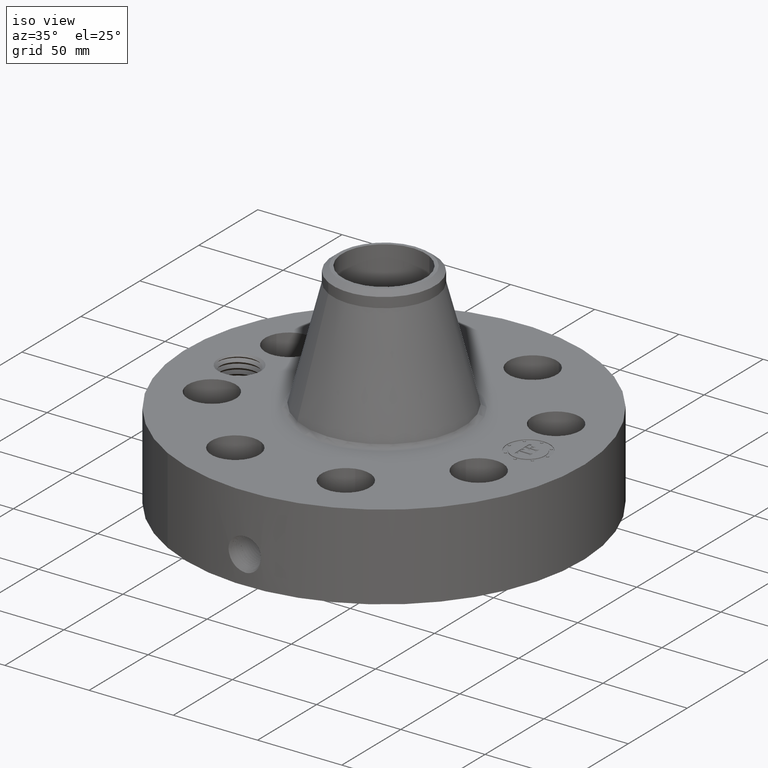
[diagram: clean part render]
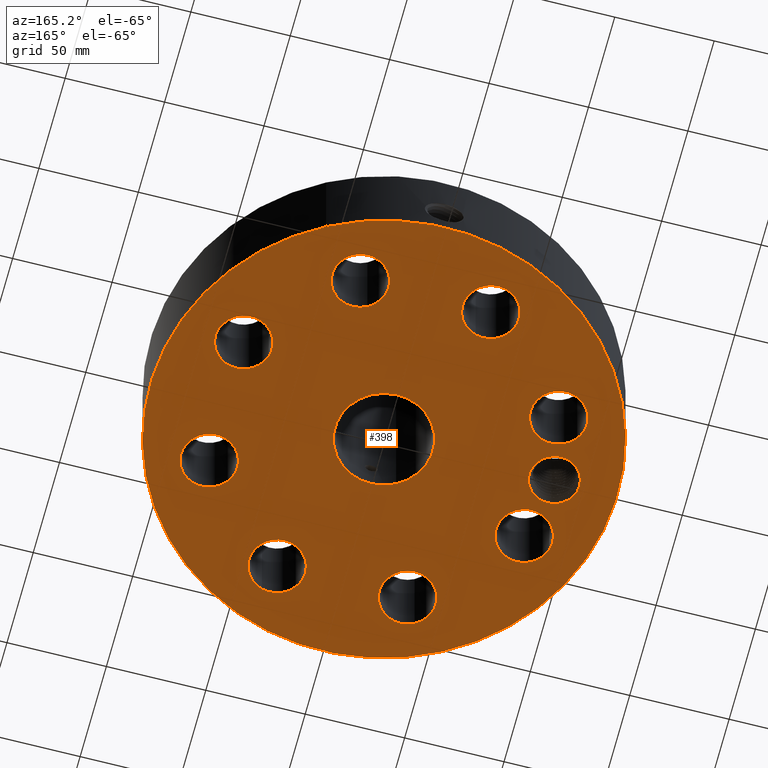
[diagram: tour spotlight — one face highlighted and labeled with its STEP entity id]
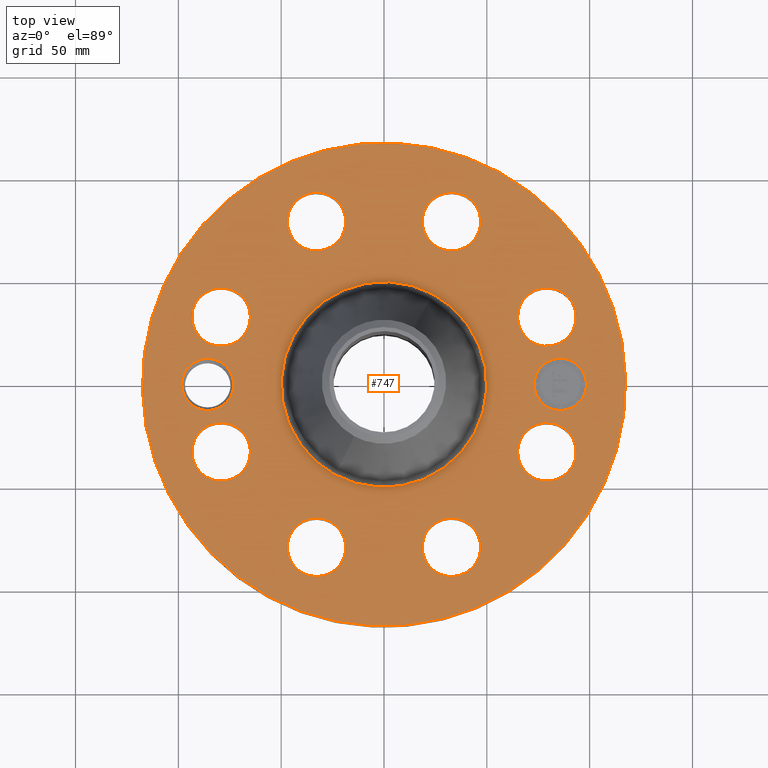
[diagram: tour spotlight — one face highlighted and labeled with its STEP entity id]
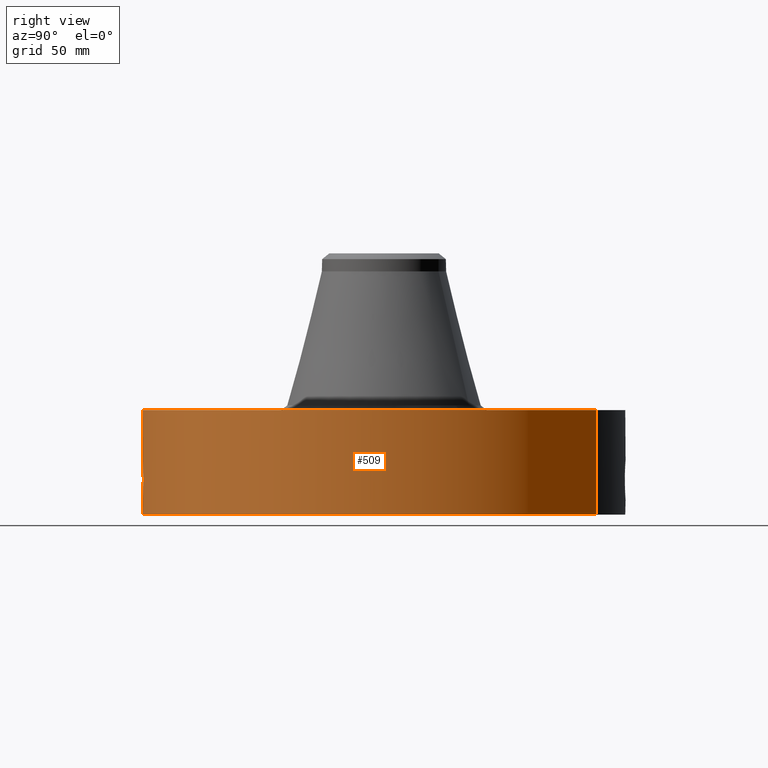
[diagram: tour spotlight — one face highlighted and labeled with its STEP entity id]
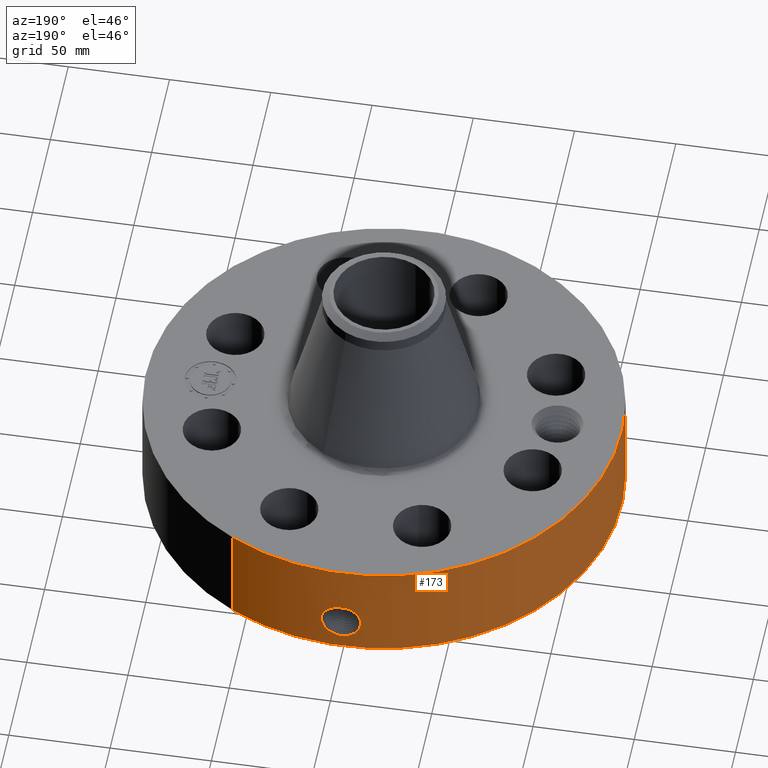
[diagram: tour spotlight — one face highlighted and labeled with its STEP entity id]
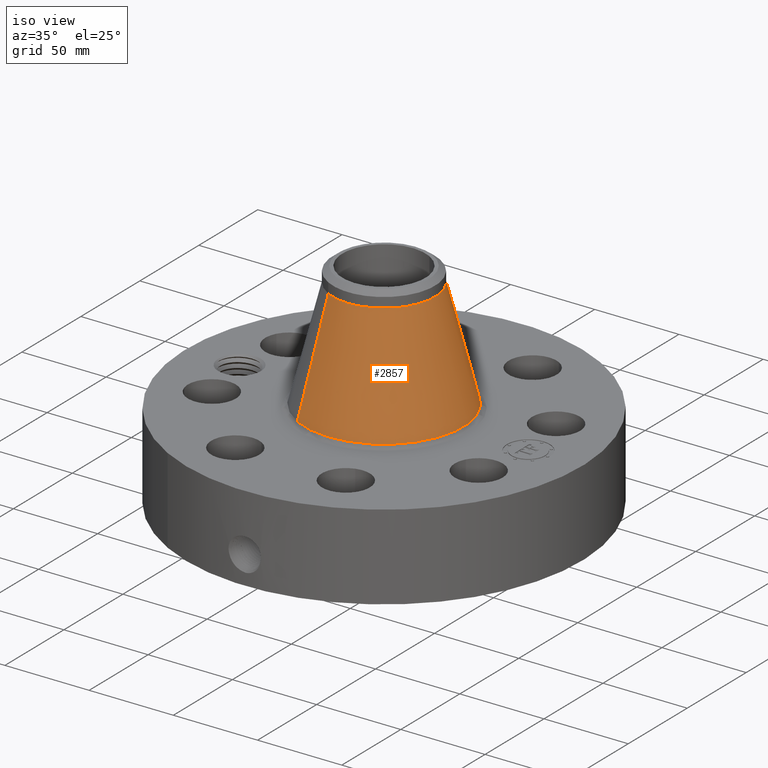
[diagram: tour spotlight — one face highlighted and labeled with its STEP entity id]
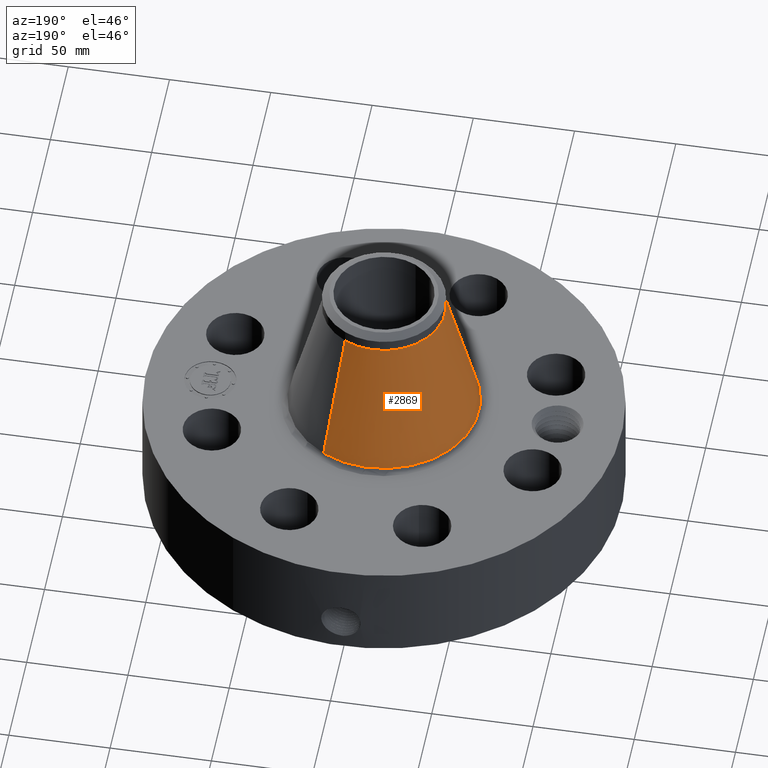
[diagram: tour spotlight — one face highlighted and labeled with its STEP entity id]
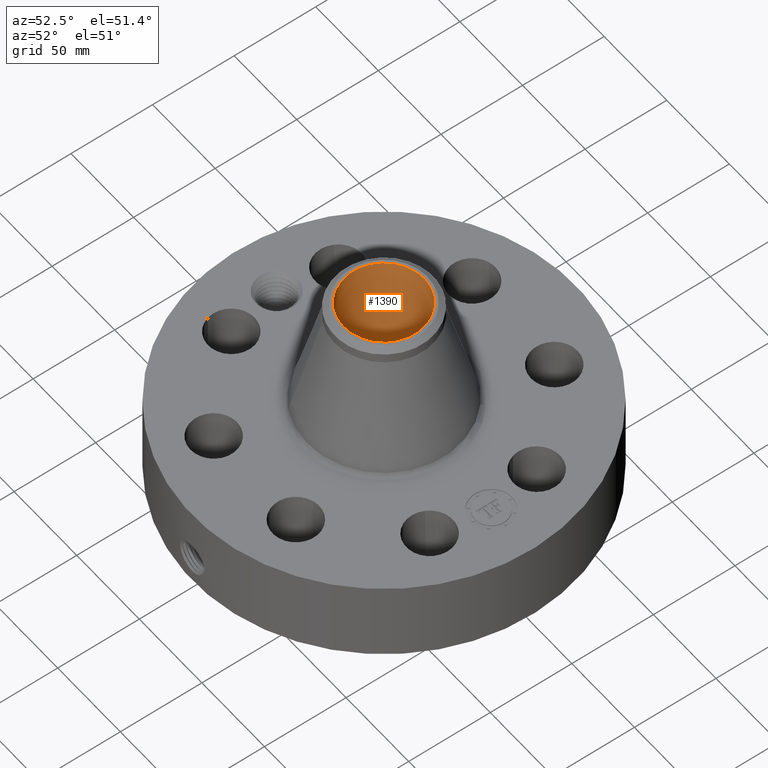
[diagram: tour spotlight — one face highlighted and labeled with its STEP entity id]
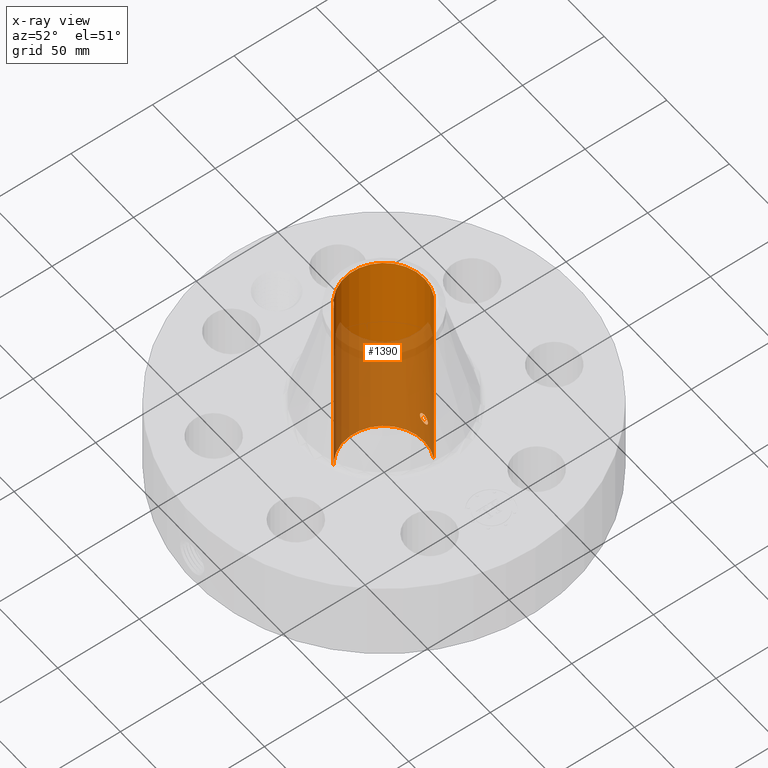
[diagram: x-ray of the same camera — body ghosted, this tour face saturated]
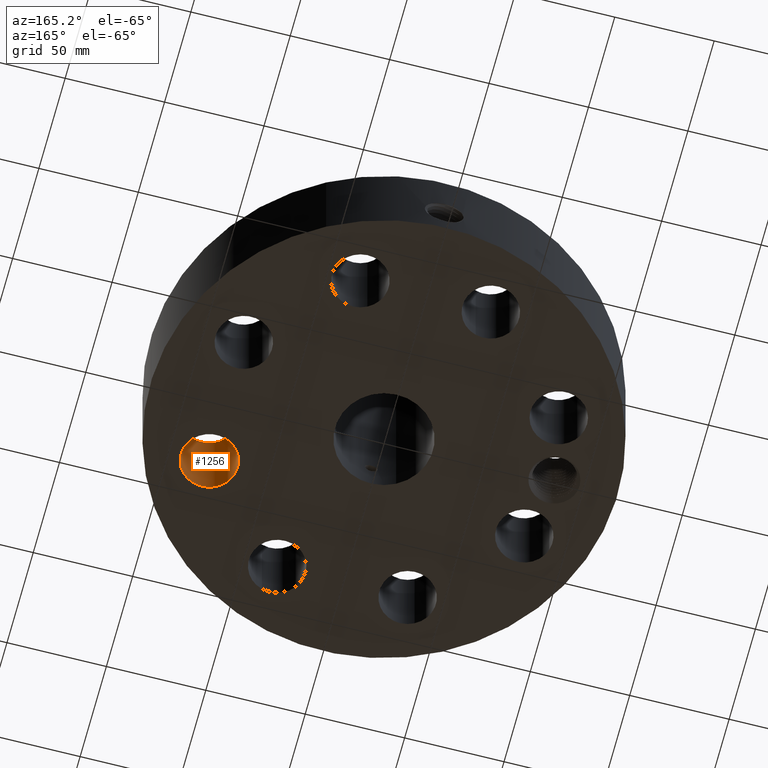
[diagram: tour spotlight — one face highlighted and labeled with its STEP entity id]
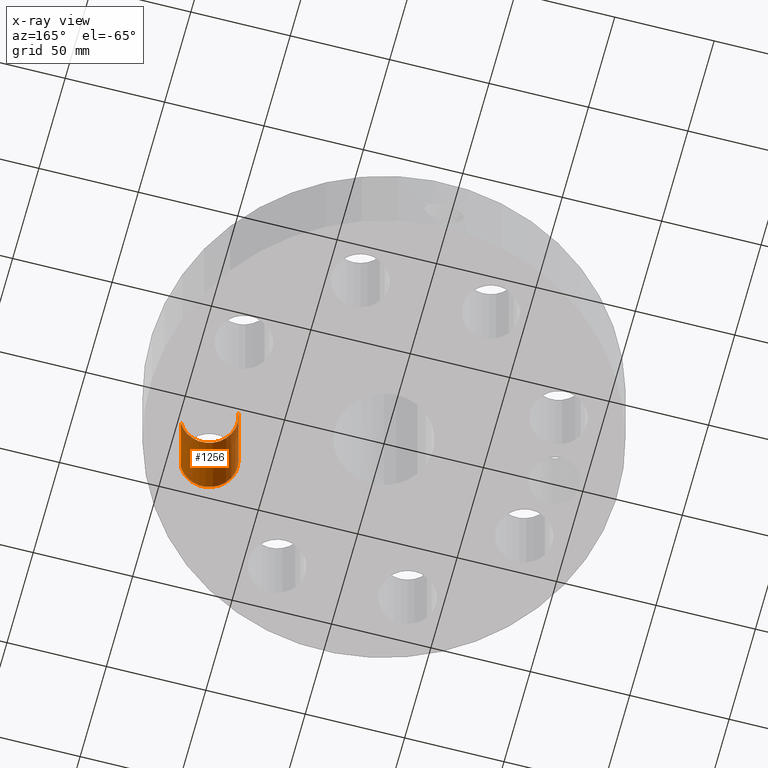
[diagram: x-ray of the same camera — body ghosted, this tour face saturated]
A machine part: a face-by-face anatomy tour. The part has 775 B-rep faces; the first image is the clean iso view, then the 8 largest visible faces are spotlighted one at a time (largest first), each with its STEP entity span.

Face 1 — auxiliary view, entity #398. In plain terms, the highlighted planar face has unit normal (0, 0, -1).
Definition (entity closure, byte-faithful):
#42=AXIS2_PLACEMENT_3D('Circle Axis2P3D',#40,#41,$) ;
#177=AXIS2_PLACEMENT_3D('Plane Axis2P3D',#174,#175,#176) ;
#181=AXIS2_PLACEMENT_3D('Circle Axis2P3D',#179,#180,$) ;
#190=AXIS2_PLACEMENT_3D('Circle Axis2P3D',#188,#189,$) ;
#199=AXIS2_PLACEMENT_3D('Circle Axis2P3D',#197,#198,$) ;
#206=AXIS2_PLACEMENT_3D('Circle Axis2P3D',#204,#205,$) ;
#238=AXIS2_PLACEMENT_3D('Circle Axis2P3D',#236,#237,$) ;
#247=AXIS2_PLACEMENT_3D('Circle Axis2P3D',#245,#246,$) ;
#256=AXIS2_PLACEMENT_3D('Circle Axis2P3D',#254,#255,$) ;
#265=AXIS2_PLACEMENT_3D('Circle Axis2P3D',#263,#264,$) ;
#274=AXIS2_PLACEMENT_3D('Circle Axis2P3D',#272,#273,$) ;
#283=AXIS2_PLACEMENT_3D('Circle Axis2P3D',#281,#282,$) ;
#292=AXIS2_PLACEMENT_3D('Circle Axis2P3D',#290,#291,$) ;
#301=AXIS2_PLACEMENT_3D('Circle Axis2P3D',#299,#300,$) ;
#310=AXIS2_PLACEMENT_3D('Circle Axis2P3D',#308,#309,$) ;
#319=AXIS2_PLACEMENT_3D('Circle Axis2P3D',#317,#318,$) ;
#328=AXIS2_PLACEMENT_3D('Circle Axis2P3D',#326,#327,$) ;
#337=AXIS2_PLACEMENT_3D('Circle Axis2P3D',#335,#336,$) ;
#346=AXIS2_PLACEMENT_3D('Circle Axis2P3D',#344,#345,$) ;
#355=AXIS2_PLACEMENT_3D('Circle Axis2P3D',#353,#354,$) ;
#364=AXIS2_PLACEMENT_3D('Circle Axis2P3D',#362,#363,$) ;
#373=AXIS2_PLACEMENT_3D('Circle Axis2P3D',#371,#372,$) ;
#382=AXIS2_PLACEMENT_3D('Circle Axis2P3D',#380,#381,$) ;
#391=AXIS2_PLACEMENT_3D('Circle Axis2P3D',#389,#390,$) ;
#40=CARTESIAN_POINT('Axis2P3D Location',(0.,0.,0.250000000001)) ;
#44=CARTESIAN_POINT('Vertex',(-2.21734311605,-4.05881934876,0.250000000001)) ;
#46=CARTESIAN_POINT('Vertex',(2.21734311605,4.05881934876,0.250000000001)) ;
#174=CARTESIAN_POINT('Axis2P3D Location',(0.,0.969500000004,0.250000000001)) ;
#179=CARTESIAN_POINT('Axis2P3D Location',(0.,0.,0.250000000001)) ;
#188=CARTESIAN_POINT('Axis2P3D Location',(-3.37500000001,-1.39870617276E-016,0.250000000001)) ;
#192=CARTESIAN_POINT('Vertex',(-3.81159732456,0.238514205457,0.250000000001)) ;
#194=CARTESIAN_POINT('Vertex',(-2.88129427996,0.0613262748525,0.250000000001)) ;
#197=CARTESIAN_POINT('Axis2P3D Location',(-3.37500000001,-1.39870617276E-016,0.250000000001)) ;
#201=CARTESIAN_POINT('Vertex',(-2.93840267547,-0.238514205457,0.250000000001)) ;
#204=CARTESIAN_POINT('Axis2P3D Location',(-3.37500000001,-1.39870617276E-016,0.250000000001)) ;
#208=CARTESIAN_POINT('Vertex',(-2.88129750233,-0.0613522109011,0.250000000001)) ;
#212=CARTESIAN_POINT('Control Point',(-2.87500000001,-2.23792987641E-015,0.250000000001)) ;
#213=CARTESIAN_POINT('Control Point',(-2.8754995778,-0.0123479738058,0.250000000001)) ;
#214=CARTESIAN_POINT('Control Point',(-2.87638066561,-0.0246733096016,0.250000000001)) ;
#215=CARTESIAN_POINT('Control Point',(-2.87764220838,-0.0369597875236,0.250000000001)) ;
#216=CARTESIAN_POINT('Control Point',(-2.87928215818,-0.0491913519261,0.250000000001)) ;
#217=CARTESIAN_POINT('Control Point',(-2.88129750233,-0.0613522109011,0.250000000001)) ;
#218=CARTESIAN_POINT('Vertex',(-2.87500000001,-2.37780049369E-015,0.250000000001)) ;
#222=CARTESIAN_POINT('Control Point',(-2.87500000001,-2.37780049369E-015,0.250000000001)) ;
#223=CARTESIAN_POINT('Control Point',(-2.87549933827,0.0123420532711,0.250000000001)) ;
#224=CARTESIAN_POINT('Control Point',(-2.87637982113,0.0246614926061,0.250000000001)) ;
#225=CARTESIAN_POINT('Control Point',(-2.87764057075,0.0369424966494,0.250000000001)) ;
#226=CARTESIAN_POINT('Control Point',(-2.87927968484,0.0491692907143,0.250000000001)) ;
#227=CARTESIAN_POINT('Control Point',(-2.88129427996,0.0613262748525,0.250000000001)) ;
#236=CARTESIAN_POINT('Axis2P3D Location',(3.11809342224,-1.29155658424,0.250000000001)) ;
#240=CARTESIAN_POINT('Vertex',(3.6095396569,-1.56003488586,0.250000000001)) ;
#242=CARTESIAN_POINT('Vertex',(2.62664718758,-1.02307828262,0.250000000001)) ;
#245=CARTESIAN_POINT('Axis2P3D Location',(3.11809342224,-1.29155658424,0.250000000001)) ;
#254=CARTESIAN_POINT('Axis2P3D Location',(0.,0.,0.250000000001)) ;
#258=CARTESIAN_POINT('Vertex',(0.464803059679,0.850816293756,0.250000000001)) ;
#260=CARTESIAN_POINT('Vertex',(-0.464803059679,-0.850816293756,0.250000000001)) ;
#263=CARTESIAN_POINT('Axis2P3D Location',(0.,0.,0.250000000001)) ;
#272=CARTESIAN_POINT('Axis2P3D Location',(1.29155658424,-3.11809342224,0.250000000001)) ;
#276=CARTESIAN_POINT('Vertex',(1.1338944468,-2.58074562944,0.250000000001)) ;
#278=CARTESIAN_POINT('Vertex',(1.44921872168,-3.65544121503,0.250000000001)) ;
#281=CARTESIAN_POINT('Axis2P3D Location',(1.29155658424,-3.11809342224,0.250000000001)) ;
#290=CARTESIAN_POINT('Axis2P3D Location',(-1.29155658424,-3.11809342224,0.250000000001)) ;
#294=CARTESIAN_POINT('Vertex',(-1.02307828262,-2.62664718758,0.250000000001)) ;
#296=CARTESIAN_POINT('Vertex',(-1.56003488586,-3.6095396569,0.250000000001)) ;
#299=CARTESIAN_POINT('Axis2P3D Location',(-1.29155658424,-3.11809342224,0.250000000001)) ;
#308=CARTESIAN_POINT('Axis2P3D Location',(-3.11809342224,-1.29155658424,0.250000000001)) ;
#312=CARTESIAN_POINT('Vertex',(-2.58074562944,-1.1338944468,0.250000000001)) ;
#314=CARTESIAN_POINT('Vertex',(-3.65544121503,-1.44921872168,0.250000000001)) ;
#317=CARTESIAN_POINT('Axis2P3D Location',(-3.11809342224,-1.29155658424,0.250000000001)) ;
#326=CARTESIAN_POINT('Axis2P3D Location',(-3.11809342224,1.29155658424,0.250000000001)) ;
#330=CARTESIAN_POINT('Vertex',(-2.62664718758,1.02307828262,0.250000000001)) ;
#332=CARTESIAN_POINT('Vertex',(-3.6095396569,1.56003488586,0.250000000001)) ;
#335=CARTESIAN_POINT('Axis2P3D Location',(-3.11809342224,1.29155658424,0.250000000001)) ;
#344=CARTESIAN_POINT('Axis2P3D Location',(-1.29155658424,3.11809342224,0.250000000001)) ;
#348=CARTESIAN_POINT('Vertex',(-1.1338944468,2.58074562944,0.250000000001)) ;
#350=CARTESIAN_POINT('Vertex',(-1.44921872168,3.65544121503,0.250000000001)) ;
#353=CARTESIAN_POINT('Axis2P3D Location',(-1.29155658424,3.11809342224,0.250000000001)) ;
#362=CARTESIAN_POINT('Axis2P3D Location',(1.29155658424,3.11809342224,0.250000000001)) ;
#366=CARTESIAN_POINT('Vertex',(1.02307828262,2.62664718758,0.250000000001)) ;
#368=CARTESIAN_POINT('Vertex',(1.56003488586,3.6095396569,0.250000000001)) ;
#371=CARTESIAN_POINT('Axis2P3D Location',(1.29155658424,3.11809342224,0.250000000001)) ;
#380=CARTESIAN_POINT('Axis2P3D Location',(3.11809342224,1.29155658424,0.250000000001)) ;
#384=CARTESIAN_POINT('Vertex',(2.58074562944,1.1338944468,0.250000000001)) ;
#386=CARTESIAN_POINT('Vertex',(3.65544121503,1.44921872168,0.250000000001)) ;
#389=CARTESIAN_POINT('Axis2P3D Location',(3.11809342224,1.29155658424,0.250000000001)) ;
#41=DIRECTION('Axis2P3D Direction',(0.,0.,-0.0393700787402)) ;
#175=DIRECTION('Axis2P3D Direction',(0.,0.,-0.0393700787402)) ;
#176=DIRECTION('Axis2P3D XDirection',(0.0393700787402,0.,0.)) ;
#180=DIRECTION('Axis2P3D Direction',(0.,0.,-0.0393700787402)) ;
#189=DIRECTION('Axis2P3D Direction',(0.,0.,-0.0393700787402)) ;
#198=DIRECTION('Axis2P3D Direction',(0.,0.,-0.0393700787402)) ;
#205=DIRECTION('Axis2P3D Direction',(0.,0.,-0.0393700787402)) ;
#237=DIRECTION('Axis2P3D Direction',(0.,0.,-0.0393700787402)) ;
#246=DIRECTION('Axis2P3D Direction',(0.,0.,-0.0393700787402)) ;
#255=DIRECTION('Axis2P3D Direction',(0.,0.,-0.0393700787402)) ;
#264=DIRECTION('Axis2P3D Direction',(0.,0.,-0.0393700787402)) ;
#273=DIRECTION('Axis2P3D Direction',(0.,0.,-0.0393700787402)) ;
#282=DIRECTION('Axis2P3D Direction',(0.,0.,-0.0393700787402)) ;
#291=DIRECTION('Axis2P3D Direction',(0.,0.,-0.0393700787402)) ;
#300=DIRECTION('Axis2P3D Direction',(0.,0.,-0.0393700787402)) ;
#309=DIRECTION('Axis2P3D Direction',(0.,0.,-0.0393700787402)) ;
#318=DIRECTION('Axis2P3D Direction',(0.,0.,-0.0393700787402)) ;
#327=DIRECTION('Axis2P3D Direction',(0.,0.,-0.0393700787402)) ;
#336=DIRECTION('Axis2P3D Direction',(0.,0.,-0.0393700787402)) ;
#345=DIRECTION('Axis2P3D Direction',(0.,0.,-0.0393700787402)) ;
#354=DIRECTION('Axis2P3D Direction',(0.,0.,-0.0393700787402)) ;
#363=DIRECTION('Axis2P3D Direction',(0.,0.,-0.0393700787402)) ;
#372=DIRECTION('Axis2P3D Direction',(0.,0.,-0.0393700787402)) ;
#381=DIRECTION('Axis2P3D Direction',(0.,0.,-0.0393700787402)) ;
#390=DIRECTION('Axis2P3D Direction',(0.,0.,-0.0393700787402)) ;
#185=ORIENTED_EDGE('',*,*,#48,.T.) ;
#186=ORIENTED_EDGE('',*,*,#183,.T.) ;
#230=ORIENTED_EDGE('',*,*,#196,.F.) ;
#231=ORIENTED_EDGE('',*,*,#203,.F.) ;
#232=ORIENTED_EDGE('',*,*,#210,.F.) ;
#233=ORIENTED_EDGE('',*,*,#220,.F.) ;
#234=ORIENTED_EDGE('',*,*,#228,.T.) ;
#251=ORIENTED_EDGE('',*,*,#244,.F.) ;
#252=ORIENTED_EDGE('',*,*,#249,.F.) ;
#269=ORIENTED_EDGE('',*,*,#262,.F.) ;
#270=ORIENTED_EDGE('',*,*,#267,.F.) ;
#287=ORIENTED_EDGE('',*,*,#280,.F.) ;
#288=ORIENTED_EDGE('',*,*,#285,.F.) ;
#305=ORIENTED_EDGE('',*,*,#298,.F.) ;
#306=ORIENTED_EDGE('',*,*,#303,.F.) ;
#323=ORIENTED_EDGE('',*,*,#316,.F.) ;
#324=ORIENTED_EDGE('',*,*,#321,.F.) ;
#341=ORIENTED_EDGE('',*,*,#334,.F.) ;
#342=ORIENTED_EDGE('',*,*,#339,.F.) ;
#359=ORIENTED_EDGE('',*,*,#352,.F.) ;
#360=ORIENTED_EDGE('',*,*,#357,.F.) ;
#377=ORIENTED_EDGE('',*,*,#370,.F.) ;
#378=ORIENTED_EDGE('',*,*,#375,.F.) ;
#395=ORIENTED_EDGE('',*,*,#388,.F.) ;
#396=ORIENTED_EDGE('',*,*,#393,.F.) ;
#235=FACE_BOUND('',#229,.T.) ;
#253=FACE_BOUND('',#250,.T.) ;
#271=FACE_BOUND('',#268,.T.) ;
#289=FACE_BOUND('',#286,.T.) ;
#307=FACE_BOUND('',#304,.T.) ;
#325=FACE_BOUND('',#322,.T.) ;
#343=FACE_BOUND('',#340,.T.) ;
#361=FACE_BOUND('',#358,.T.) ;
#379=FACE_BOUND('',#376,.T.) ;
#397=FACE_BOUND('',#394,.T.) ;
#398=ADVANCED_FACE('PartBody',(#187,#235,#253,#271,#289,#307,#325,#343,#361,#379,#397),#178,.T.) ;
#211=B_SPLINE_CURVE_WITH_KNOTS('',5,(#212,#213,#214,#215,#216,#217),.UNSPECIFIED.,.F.,.U.,(6,6),(0.,2.15278908767),.UNSPECIFIED.) ;
#221=B_SPLINE_CURVE_WITH_KNOTS('',5,(#222,#223,#224,#225,#226,#227),.UNSPECIFIED.,.F.,.U.,(6,6),(0.,2.15175688089),.UNSPECIFIED.) ;
#43=CIRCLE('generated circle',#42,4.62500000002) ;
#182=CIRCLE('generated circle',#181,4.62500000002) ;
#191=CIRCLE('generated circle',#190,0.497500000002) ;
#200=CIRCLE('generated circle',#199,0.497500000002) ;
#207=CIRCLE('generated circle',#206,0.497500000002) ;
#239=CIRCLE('generated circle',#238,0.560000000002) ;
#248=CIRCLE('generated circle',#247,0.560000000002) ;
#257=CIRCLE('generated circle',#256,0.969500000004) ;
#266=CIRCLE('generated circle',#265,0.969500000004) ;
#275=CIRCLE('generated circle',#274,0.560000000002) ;
#284=CIRCLE('generated circle',#283,0.560000000002) ;
#293=CIRCLE('generated circle',#292,0.560000000002) ;
#302=CIRCLE('generated circle',#301,0.560000000002) ;
#311=CIRCLE('generated circle',#310,0.560000000002) ;
#320=CIRCLE('generated circle',#319,0.560000000002) ;
#329=CIRCLE('generated circle',#328,0.560000000002) ;
#338=CIRCLE('generated circle',#337,0.560000000002) ;
#347=CIRCLE('generated circle',#346,0.560000000002) ;
#356=CIRCLE('generated circle',#355,0.560000000002) ;
#365=CIRCLE('generated circle',#364,0.560000000002) ;
#374=CIRCLE('generated circle',#373,0.560000000002) ;
#383=CIRCLE('generated circle',#382,0.560000000002) ;
#392=CIRCLE('generated circle',#391,0.560000000002) ;
#48=EDGE_CURVE('',#45,#47,#43,.T.) ;
#183=EDGE_CURVE('',#47,#45,#182,.T.) ;
#196=EDGE_CURVE('',#193,#195,#191,.T.) ;
#203=EDGE_CURVE('',#202,#193,#200,.T.) ;
#210=EDGE_CURVE('',#209,#202,#207,.T.) ;
#220=EDGE_CURVE('',#219,#209,#211,.T.) ;
#228=EDGE_CURVE('',#219,#195,#221,.T.) ;
#244=EDGE_CURVE('',#241,#243,#239,.T.) ;
#249=EDGE_CURVE('',#243,#241,#248,.T.) ;
#262=EDGE_CURVE('',#259,#261,#257,.T.) ;
#267=EDGE_CURVE('',#261,#259,#266,.T.) ;
#280=EDGE_CURVE('',#277,#279,#275,.T.) ;
#285=EDGE_CURVE('',#279,#277,#284,.T.) ;
#298=EDGE_CURVE('',#295,#297,#293,.T.) ;
#303=EDGE_CURVE('',#297,#295,#302,.T.) ;
#316=EDGE_CURVE('',#313,#315,#311,.T.) ;
#321=EDGE_CURVE('',#315,#313,#320,.T.) ;
#334=EDGE_CURVE('',#331,#333,#329,.T.) ;
#339=EDGE_CURVE('',#333,#331,#338,.T.) ;
#352=EDGE_CURVE('',#349,#351,#347,.T.) ;
#357=EDGE_CURVE('',#351,#349,#356,.T.) ;
#370=EDGE_CURVE('',#367,#369,#365,.T.) ;
#375=EDGE_CURVE('',#369,#367,#374,.T.) ;
#388=EDGE_CURVE('',#385,#387,#383,.T.) ;
#393=EDGE_CURVE('',#387,#385,#392,.T.) ;
#184=EDGE_LOOP('',(#185,#186)) ;
#229=EDGE_LOOP('',(#230,#231,#232,#233,#234)) ;
#250=EDGE_LOOP('',(#251,#252)) ;
#268=EDGE_LOOP('',(#269,#270)) ;
#286=EDGE_LOOP('',(#287,#288)) ;
#304=EDGE_LOOP('',(#305,#306)) ;
#322=EDGE_LOOP('',(#323,#324)) ;
#340=EDGE_LOOP('',(#341,#342)) ;
#358=EDGE_LOOP('',(#359,#360)) ;
#376=EDGE_LOOP('',(#377,#378)) ;
#394=EDGE_LOOP('',(#395,#396)) ;
#187=FACE_OUTER_BOUND('',#184,.T.) ;
#178=PLANE('',#177) ;
#45=VERTEX_POINT('',#44) ;
#47=VERTEX_POINT('',#46) ;
#193=VERTEX_POINT('',#192) ;
#195=VERTEX_POINT('',#194) ;
#202=VERTEX_POINT('',#201) ;
#209=VERTEX_POINT('',#208) ;
#219=VERTEX_POINT('',#218) ;
#241=VERTEX_POINT('',#240) ;
#243=VERTEX_POINT('',#242) ;
#259=VERTEX_POINT('',#258) ;
#261=VERTEX_POINT('',#260) ;
#277=VERTEX_POINT('',#276) ;
#279=VERTEX_POINT('',#278) ;
#295=VERTEX_POINT('',#294) ;
#297=VERTEX_POINT('',#296) ;
#313=VERTEX_POINT('',#312) ;
#315=VERTEX_POINT('',#314) ;
#331=VERTEX_POINT('',#330) ;
#333=VERTEX_POINT('',#332) ;
#349=VERTEX_POINT('',#348) ;
#351=VERTEX_POINT('',#350) ;
#367=VERTEX_POINT('',#366) ;
#369=VERTEX_POINT('',#368) ;
#385=VERTEX_POINT('',#384) ;
#387=VERTEX_POINT('',#386) ;

Face 2 — top view, entity #747. In plain terms, the highlighted planar face has unit normal (0, 0, -1).
Definition (entity closure, byte-faithful):
#58=AXIS2_PLACEMENT_3D('Circle Axis2P3D',#56,#57,$) ;
#401=AXIS2_PLACEMENT_3D('Circle Axis2P3D',#399,#400,$) ;
#513=AXIS2_PLACEMENT_3D('Plane Axis2P3D',#510,#511,#512) ;
#543=AXIS2_PLACEMENT_3D('Circle Axis2P3D',#541,#542,$) ;
#550=AXIS2_PLACEMENT_3D('Circle Axis2P3D',#548,#549,$) ;
#557=AXIS2_PLACEMENT_3D('Circle Axis2P3D',#555,#556,$) ;
#569=AXIS2_PLACEMENT_3D('Circle Axis2P3D',#567,#568,$) ;
#578=AXIS2_PLACEMENT_3D('Circle Axis2P3D',#576,#577,$) ;
#587=AXIS2_PLACEMENT_3D('Circle Axis2P3D',#585,#586,$) ;
#596=AXIS2_PLACEMENT_3D('Circle Axis2P3D',#594,#595,$) ;
#605=AXIS2_PLACEMENT_3D('Circle Axis2P3D',#603,#604,$) ;
#614=AXIS2_PLACEMENT_3D('Circle Axis2P3D',#612,#613,$) ;
#623=AXIS2_PLACEMENT_3D('Circle Axis2P3D',#621,#622,$) ;
#632=AXIS2_PLACEMENT_3D('Circle Axis2P3D',#630,#631,$) ;
#641=AXIS2_PLACEMENT_3D('Circle Axis2P3D',#639,#640,$) ;
#650=AXIS2_PLACEMENT_3D('Circle Axis2P3D',#648,#649,$) ;
#659=AXIS2_PLACEMENT_3D('Circle Axis2P3D',#657,#658,$) ;
#668=AXIS2_PLACEMENT_3D('Circle Axis2P3D',#666,#667,$) ;
#677=AXIS2_PLACEMENT_3D('Circle Axis2P3D',#675,#676,$) ;
#686=AXIS2_PLACEMENT_3D('Circle Axis2P3D',#684,#685,$) ;
#695=AXIS2_PLACEMENT_3D('Circle Axis2P3D',#693,#694,$) ;
#704=AXIS2_PLACEMENT_3D('Circle Axis2P3D',#702,#703,$) ;
#713=AXIS2_PLACEMENT_3D('Circle Axis2P3D',#711,#712,$) ;
#722=AXIS2_PLACEMENT_3D('Circle Axis2P3D',#720,#721,$) ;
#731=AXIS2_PLACEMENT_3D('Circle Axis2P3D',#729,#730,$) ;
#740=AXIS2_PLACEMENT_3D('Circle Axis2P3D',#738,#739,$) ;
#53=CARTESIAN_POINT('Vertex',(-2.21734311605,-4.05881934876,2.25000000001)) ;
#56=CARTESIAN_POINT('Axis2P3D Location',(0.,0.,2.25000000001)) ;
#60=CARTESIAN_POINT('Vertex',(2.21734311605,4.05881934876,2.25000000001)) ;
#399=CARTESIAN_POINT('Axis2P3D Location',(0.,0.,2.25000000001)) ;
#510=CARTESIAN_POINT('Axis2P3D Location',(0.,4.62500000002,2.25000000001)) ;
#520=CARTESIAN_POINT('Control Point',(-2.87500000001,-5.59482469102E-016,2.25000000001)) ;
#521=CARTESIAN_POINT('Control Point',(-2.8754993385,0.0123420590966,2.25000000001)) ;
#522=CARTESIAN_POINT('Control Point',(-2.87637982176,0.0246615028402,2.25000000001)) ;
#523=CARTESIAN_POINT('Control Point',(-2.87764057188,0.0369425101497,2.25000000001)) ;
#524=CARTESIAN_POINT('Control Point',(-2.8792796865,0.0491693065627,2.25000000001)) ;
#525=CARTESIAN_POINT('Control Point',(-2.88129428213,0.0613262923161,2.25000000001)) ;
#526=CARTESIAN_POINT('Vertex',(-2.87500000001,-5.59482469102E-016,2.25000000001)) ;
#528=CARTESIAN_POINT('Vertex',(-2.88129428213,0.0613262923161,2.25000000001)) ;
#532=CARTESIAN_POINT('Control Point',(-2.87500000001,5.59482469102E-016,2.25000000001)) ;
#533=CARTESIAN_POINT('Control Point',(-2.87549957786,-0.0123479753677,2.25000000001)) ;
#534=CARTESIAN_POINT('Control Point',(-2.87638066585,-0.0246733136721,2.25000000001)) ;
#535=CARTESIAN_POINT('Control Point',(-2.87764220895,-0.0369597949032,2.25000000001)) ;
#536=CARTESIAN_POINT('Control Point',(-2.87928215932,-0.0491913632841,2.25000000001)) ;
#537=CARTESIAN_POINT('Control Point',(-2.8812975043,-0.0613522267868,2.25000000001)) ;
#538=CARTESIAN_POINT('Vertex',(-2.8812975043,-0.0613522267868,2.25000000001)) ;
#541=CARTESIAN_POINT('Axis2P3D Location',(-3.37500000001,2.23792987641E-015,2.25000000001)) ;
#545=CARTESIAN_POINT('Vertex',(-2.93840267547,-0.238514205457,2.25000000001)) ;
#548=CARTESIAN_POINT('Axis2P3D Location',(-3.37500000001,2.23792987641E-015,2.25000000001)) ;
#552=CARTESIAN_POINT('Vertex',(-3.81159732456,0.238514205457,2.25000000001)) ;
#555=CARTESIAN_POINT('Axis2P3D Location',(-3.37500000001,2.23792987641E-015,2.25000000001)) ;
#567=CARTESIAN_POINT('Axis2P3D Location',(3.11809342224,-1.29155658424,2.25000000001)) ;
#571=CARTESIAN_POINT('Vertex',(2.62664718758,-1.02307828262,2.25000000001)) ;
#573=CARTESIAN_POINT('Vertex',(3.6095396569,-1.56003488586,2.25000000001)) ;
#576=CARTESIAN_POINT('Axis2P3D Location',(3.11809342224,-1.29155658424,2.25000000001)) ;
#585=CARTESIAN_POINT('Axis2P3D Location',(0.,0.,2.25000000001)) ;
#589=CARTESIAN_POINT('Vertex',(-0.943494690313,-1.72705544612,2.25000000001)) ;
#591=CARTESIAN_POINT('Vertex',(0.943494690313,1.72705544612,2.25000000001)) ;
#594=CARTESIAN_POINT('Axis2P3D Location',(0.,0.,2.25000000001)) ;
#603=CARTESIAN_POINT('Axis2P3D Location',(1.29155658424,-3.11809342224,2.25000000001)) ;
#607=CARTESIAN_POINT('Vertex',(1.44921872168,-3.65544121503,2.25000000001)) ;
#609=CARTESIAN_POINT('Vertex',(1.1338944468,-2.58074562944,2.25000000001)) ;
#612=CARTESIAN_POINT('Axis2P3D Location',(1.29155658424,-3.11809342224,2.25000000001)) ;
#621=CARTESIAN_POINT('Axis2P3D Location',(-1.29155658424,-3.11809342224,2.25000000001)) ;
#625=CARTESIAN_POINT('Vertex',(-1.56003488586,-3.6095396569,2.25000000001)) ;
#627=CARTESIAN_POINT('Vertex',(-1.02307828262,-2.62664718758,2.25000000001)) ;
#630=CARTESIAN_POINT('Axis2P3D Location',(-1.29155658424,-3.11809342224,2.25000000001)) ;
#639=CARTESIAN_POINT('Axis2P3D Location',(-3.11809342224,-1.29155658424,2.25000000001)) ;
#643=CARTESIAN_POINT('Vertex',(-3.65544121503,-1.44921872168,2.25000000001)) ;
#645=CARTESIAN_POINT('Vertex',(-2.58074562944,-1.1338944468,2.25000000001)) ;
#648=CARTESIAN_POINT('Axis2P3D Location',(-3.11809342224,-1.29155658424,2.25000000001)) ;
#657=CARTESIAN_POINT('Axis2P3D Location',(-3.11809342224,1.29155658424,2.25000000001)) ;
#661=CARTESIAN_POINT('Vertex',(-3.6095396569,1.56003488586,2.25000000001)) ;
#663=CARTESIAN_POINT('Vertex',(-2.62664718758,1.02307828262,2.25000000001)) ;
#666=CARTESIAN_POINT('Axis2P3D Location',(-3.11809342224,1.29155658424,2.25000000001)) ;
#675=CARTESIAN_POINT('Axis2P3D Location',(-1.29155658424,3.11809342224,2.25000000001)) ;
#679=CARTESIAN_POINT('Vertex',(-1.44921872168,3.65544121503,2.25000000001)) ;
#681=CARTESIAN_POINT('Vertex',(-1.1338944468,2.58074562944,2.25000000001)) ;
#684=CARTESIAN_POINT('Axis2P3D Location',(-1.29155658424,3.11809342224,2.25000000001)) ;
#693=CARTESIAN_POINT('Axis2P3D Location',(1.29155658424,3.11809342224,2.25000000001)) ;
#697=CARTESIAN_POINT('Vertex',(1.56003488586,3.6095396569,2.25000000001)) ;
#699=CARTESIAN_POINT('Vertex',(1.02307828262,2.62664718758,2.25000000001)) ;
#702=CARTESIAN_POINT('Axis2P3D Location',(1.29155658424,3.11809342224,2.25000000001)) ;
#711=CARTESIAN_POINT('Axis2P3D Location',(3.11809342224,1.29155658424,2.25000000001)) ;
#715=CARTESIAN_POINT('Vertex',(3.65544121503,1.44921872168,2.25000000001)) ;
#717=CARTESIAN_POINT('Vertex',(2.58074562944,1.1338944468,2.25000000001)) ;
#720=CARTESIAN_POINT('Axis2P3D Location',(3.11809342224,1.29155658424,2.25000000001)) ;
#729=CARTESIAN_POINT('Axis2P3D Location',(3.37500000001,-7.27327209833E-015,2.25000000001)) ;
#733=CARTESIAN_POINT('Vertex',(3.37500000001,0.499999995002,2.25000000001)) ;
#735=CARTESIAN_POINT('Vertex',(3.37500000001,-0.499999995002,2.25000000001)) ;
#738=CARTESIAN_POINT('Axis2P3D Location',(3.37500000001,-7.83275456743E-015,2.25000000001)) ;
#57=DIRECTION('Axis2P3D Direction',(0.,0.,-0.0393700787402)) ;
#400=DIRECTION('Axis2P3D Direction',(0.,0.,-0.0393700787402)) ;
#511=DIRECTION('Axis2P3D Direction',(0.,0.,-0.0393700787402)) ;
#512=DIRECTION('Axis2P3D XDirection',(0.0393700787402,0.,0.)) ;
#542=DIRECTION('Axis2P3D Direction',(0.,0.,-0.0393700787402)) ;
#549=DIRECTION('Axis2P3D Direction',(0.,0.,-0.0393700787402)) ;
#556=DIRECTION('Axis2P3D Direction',(0.,0.,-0.0393700787402)) ;
#568=DIRECTION('Axis2P3D Direction',(0.,0.,-0.0393700787402)) ;
#577=DIRECTION('Axis2P3D Direction',(0.,0.,-0.0393700787402)) ;
#586=DIRECTION('Axis2P3D Direction',(0.,0.,-0.0393700787402)) ;
#595=DIRECTION('Axis2P3D Direction',(0.,0.,-0.0393700787402)) ;
#604=DIRECTION('Axis2P3D Direction',(0.,0.,-0.0393700787402)) ;
#613=DIRECTION('Axis2P3D Direction',(0.,0.,-0.0393700787402)) ;
#622=DIRECTION('Axis2P3D Direction',(0.,0.,-0.0393700787402)) ;
#631=DIRECTION('Axis2P3D Direction',(0.,0.,-0.0393700787402)) ;
#640=DIRECTION('Axis2P3D Direction',(0.,0.,-0.0393700787402)) ;
#649=DIRECTION('Axis2P3D Direction',(0.,0.,-0.0393700787402)) ;
#658=DIRECTION('Axis2P3D Direction',(0.,0.,-0.0393700787402)) ;
#667=DIRECTION('Axis2P3D Direction',(0.,0.,-0.0393700787402)) ;
#676=DIRECTION('Axis2P3D Direction',(0.,0.,-0.0393700787402)) ;
#685=DIRECTION('Axis2P3D Direction',(0.,0.,-0.0393700787402)) ;
#694=DIRECTION('Axis2P3D Direction',(0.,0.,-0.0393700787402)) ;
#703=DIRECTION('Axis2P3D Direction',(0.,0.,-0.0393700787402)) ;
#712=DIRECTION('Axis2P3D Direction',(0.,0.,-0.0393700787402)) ;
#721=DIRECTION('Axis2P3D Direction',(0.,0.,-0.0393700787402)) ;
#730=DIRECTION('Axis2P3D Direction',(0.,0.,-0.0393700787402)) ;
#739=DIRECTION('Axis2P3D Direction',(0.,0.,-0.0393700787402)) ;
#516=ORIENTED_EDGE('',*,*,#403,.F.) ;
#517=ORIENTED_EDGE('',*,*,#62,.F.) ;
#561=ORIENTED_EDGE('',*,*,#530,.F.) ;
#562=ORIENTED_EDGE('',*,*,#540,.T.) ;
#563=ORIENTED_EDGE('',*,*,#547,.T.) ;
#564=ORIENTED_EDGE('',*,*,#554,.T.) ;
#565=ORIENTED_EDGE('',*,*,#559,.T.) ;
#582=ORIENTED_EDGE('',*,*,#575,.T.) ;
#583=ORIENTED_EDGE('',*,*,#580,.T.) ;
#600=ORIENTED_EDGE('',*,*,#593,.T.) ;
#601=ORIENTED_EDGE('',*,*,#598,.T.) ;
#618=ORIENTED_EDGE('',*,*,#611,.T.) ;
#619=ORIENTED_EDGE('',*,*,#616,.T.) ;
#636=ORIENTED_EDGE('',*,*,#629,.T.) ;
#637=ORIENTED_EDGE('',*,*,#634,.T.) ;
#654=ORIENTED_EDGE('',*,*,#647,.T.) ;
#655=ORIENTED_EDGE('',*,*,#652,.T.) ;
#672=ORIENTED_EDGE('',*,*,#665,.T.) ;
#673=ORIENTED_EDGE('',*,*,#670,.T.) ;
#690=ORIENTED_EDGE('',*,*,#683,.T.) ;
#691=ORIENTED_EDGE('',*,*,#688,.T.) ;
#708=ORIENTED_EDGE('',*,*,#701,.T.) ;
#709=ORIENTED_EDGE('',*,*,#706,.T.) ;
#726=ORIENTED_EDGE('',*,*,#719,.T.) ;
#727=ORIENTED_EDGE('',*,*,#724,.T.) ;
#744=ORIENTED_EDGE('',*,*,#737,.T.) ;
#745=ORIENTED_EDGE('',*,*,#742,.T.) ;
#566=FACE_BOUND('',#560,.T.) ;
#584=FACE_BOUND('',#581,.T.) ;
#602=FACE_BOUND('',#599,.T.) ;
#620=FACE_BOUND('',#617,.T.) ;
#638=FACE_BOUND('',#635,.T.) ;
#656=FACE_BOUND('',#653,.T.) ;
#674=FACE_BOUND('',#671,.T.) ;
#692=FACE_BOUND('',#689,.T.) ;
#710=FACE_BOUND('',#707,.T.) ;
#728=FACE_BOUND('',#725,.T.) ;
#746=FACE_BOUND('',#743,.T.) ;
#747=ADVANCED_FACE('PartBody',(#518,#566,#584,#602,#620,#638,#656,#674,#692,#710,#728,#746),#514,.F.) ;
#519=B_SPLINE_CURVE_WITH_KNOTS('',5,(#520,#521,#522,#523,#524,#525),.UNSPECIFIED.,.F.,.U.,(6,6),(0.,2.15175789654),.UNSPECIFIED.) ;
#531=B_SPLINE_CURVE_WITH_KNOTS('',5,(#532,#533,#534,#535,#536,#537),.UNSPECIFIED.,.F.,.U.,(6,6),(0.,2.15278935995),.UNSPECIFIED.) ;
#59=CIRCLE('generated circle',#58,4.62500000002) ;
#402=CIRCLE('generated circle',#401,4.62500000002) ;
#544=CIRCLE('generated circle',#543,0.497500000002) ;
#551=CIRCLE('generated circle',#550,0.497500000002) ;
#558=CIRCLE('generated circle',#557,0.497500000002) ;
#570=CIRCLE('generated circle',#569,0.560000000002) ;
#579=CIRCLE('generated circle',#578,0.560000000002) ;
#588=CIRCLE('generated circle',#587,1.96796919301) ;
#597=CIRCLE('generated circle',#596,1.96796919301) ;
#606=CIRCLE('generated circle',#605,0.560000000002) ;
#615=CIRCLE('generated circle',#614,0.560000000002) ;
#624=CIRCLE('generated circle',#623,0.560000000002) ;
#633=CIRCLE('generated circle',#632,0.560000000002) ;
#642=CIRCLE('generated circle',#641,0.560000000002) ;
#651=CIRCLE('generated circle',#650,0.560000000002) ;
#660=CIRCLE('generated circle',#659,0.560000000002) ;
#669=CIRCLE('generated circle',#668,0.560000000002) ;
#678=CIRCLE('generated circle',#677,0.560000000002) ;
#687=CIRCLE('generated circle',#686,0.560000000002) ;
#696=CIRCLE('generated circle',#695,0.560000000002) ;
#705=CIRCLE('generated circle',#704,0.560000000002) ;
#714=CIRCLE('generated circle',#713,0.560000000002) ;
#723=CIRCLE('generated circle',#722,0.560000000002) ;
#732=CIRCLE('generated circle',#731,0.499999995002) ;
#741=CIRCLE('generated circle',#740,0.499999995002) ;
#62=EDGE_CURVE('',#54,#61,#59,.T.) ;
#403=EDGE_CURVE('',#61,#54,#402,.T.) ;
#530=EDGE_CURVE('',#527,#529,#519,.T.) ;
#540=EDGE_CURVE('',#527,#539,#531,.T.) ;
#547=EDGE_CURVE('',#539,#546,#544,.T.) ;
#554=EDGE_CURVE('',#546,#553,#551,.T.) ;
#559=EDGE_CURVE('',#553,#529,#558,.T.) ;
#575=EDGE_CURVE('',#572,#574,#570,.T.) ;
#580=EDGE_CURVE('',#574,#572,#579,.T.) ;
#593=EDGE_CURVE('',#590,#592,#588,.T.) ;
#598=EDGE_CURVE('',#592,#590,#597,.T.) ;
#611=EDGE_CURVE('',#608,#610,#606,.T.) ;
#616=EDGE_CURVE('',#610,#608,#615,.T.) ;
#629=EDGE_CURVE('',#626,#628,#624,.T.) ;
#634=EDGE_CURVE('',#628,#626,#633,.T.) ;
#647=EDGE_CURVE('',#644,#646,#642,.T.) ;
#652=EDGE_CURVE('',#646,#644,#651,.T.) ;
#665=EDGE_CURVE('',#662,#664,#660,.T.) ;
#670=EDGE_CURVE('',#664,#662,#669,.T.) ;
#683=EDGE_CURVE('',#680,#682,#678,.T.) ;
#688=EDGE_CURVE('',#682,#680,#687,.T.) ;
#701=EDGE_CURVE('',#698,#700,#696,.T.) ;
#706=EDGE_CURVE('',#700,#698,#705,.T.) ;
#719=EDGE_CURVE('',#716,#718,#714,.T.) ;
#724=EDGE_CURVE('',#718,#716,#723,.T.) ;
#737=EDGE_CURVE('',#734,#736,#732,.T.) ;
#742=EDGE_CURVE('',#736,#734,#741,.T.) ;
#515=EDGE_LOOP('',(#516,#517)) ;
#560=EDGE_LOOP('',(#561,#562,#563,#564,#565)) ;
#581=EDGE_LOOP('',(#582,#583)) ;
#599=EDGE_LOOP('',(#600,#601)) ;
#617=EDGE_LOOP('',(#618,#619)) ;
#635=EDGE_LOOP('',(#636,#637)) ;
#653=EDGE_LOOP('',(#654,#655)) ;
#671=EDGE_LOOP('',(#672,#673)) ;
#689=EDGE_LOOP('',(#690,#691)) ;
#707=EDGE_LOOP('',(#708,#709)) ;
#725=EDGE_LOOP('',(#726,#727)) ;
#743=EDGE_LOOP('',(#744,#745)) ;
#518=FACE_OUTER_BOUND('',#515,.T.) ;
#514=PLANE('',#513) ;
#54=VERTEX_POINT('',#53) ;
#61=VERTEX_POINT('',#60) ;
#527=VERTEX_POINT('',#526) ;
#529=VERTEX_POINT('',#528) ;
#539=VERTEX_POINT('',#538) ;
#546=VERTEX_POINT('',#545) ;
#553=VERTEX_POINT('',#552) ;
#572=VERTEX_POINT('',#571) ;
#574=VERTEX_POINT('',#573) ;
#590=VERTEX_POINT('',#589) ;
#592=VERTEX_POINT('',#591) ;
#608=VERTEX_POINT('',#607) ;
#610=VERTEX_POINT('',#609) ;
#626=VERTEX_POINT('',#625) ;
#628=VERTEX_POINT('',#627) ;
#644=VERTEX_POINT('',#643) ;
#646=VERTEX_POINT('',#645) ;
#662=VERTEX_POINT('',#661) ;
#664=VERTEX_POINT('',#663) ;
#680=VERTEX_POINT('',#679) ;
#682=VERTEX_POINT('',#681) ;
#698=VERTEX_POINT('',#697) ;
#700=VERTEX_POINT('',#699) ;
#716=VERTEX_POINT('',#715) ;
#718=VERTEX_POINT('',#717) ;
#734=VERTEX_POINT('',#733) ;
#736=VERTEX_POINT('',#735) ;

Face 3 — right view, entity #509. In plain terms, the highlighted cylindrical surface (partial cylindrical patch) has radius 117.475 mm, axis along (0, 0, -1).
Definition (entity closure, byte-faithful):
#38=AXIS2_PLACEMENT_3D('Cylinder Axis2P3D',#35,#36,#37) ;
#181=AXIS2_PLACEMENT_3D('Circle Axis2P3D',#179,#180,$) ;
#401=AXIS2_PLACEMENT_3D('Circle Axis2P3D',#399,#400,$) ;
#35=CARTESIAN_POINT('Axis2P3D Location',(0.,0.,2.75000000001)) ;
#44=CARTESIAN_POINT('Vertex',(-2.21734311605,-4.05881934876,0.250000000001)) ;
#46=CARTESIAN_POINT('Vertex',(2.21734311605,4.05881934876,0.250000000001)) ;
#49=CARTESIAN_POINT('Line Origine',(-2.21734311605,-4.05881934876,1.25000000001)) ;
#53=CARTESIAN_POINT('Vertex',(-2.21734311605,-4.05881934876,2.25000000001)) ;
#60=CARTESIAN_POINT('Vertex',(2.21734311605,4.05881934876,2.25000000001)) ;
#63=CARTESIAN_POINT('Line Origine',(2.21734311605,4.05881934876,1.25000000001)) ;
#179=CARTESIAN_POINT('Axis2P3D Location',(0.,0.,0.250000000001)) ;
#399=CARTESIAN_POINT('Axis2P3D Location',(0.,0.,2.25000000001)) ;
#411=CARTESIAN_POINT('Control Point',(0.0671340806478,-4.62451273275,1.28768153731)) ;
#412=CARTESIAN_POINT('Control Point',(0.0452657259238,-4.6248301958,1.29191427712)) ;
#413=CARTESIAN_POINT('Control Point',(0.0229938866807,-4.62499649028,1.2940732404)) ;
#414=CARTESIAN_POINT('Control Point',(0.000717132374501,-4.62499994442,1.29411849673)) ;
#415=CARTESIAN_POINT('Vertex',(0.0671073755817,-4.6245133938,1.2876870184)) ;
#417=CARTESIAN_POINT('Vertex',(0.000716904936999,-4.62499994445,1.2941185069)) ;
#421=CARTESIAN_POINT('Control Point',(0.0671072460669,-4.62451312223,1.28768636789)) ;
#422=CARTESIAN_POINT('Control Point',(0.103190966352,-4.62398950406,1.2818199548)) ;
#423=CARTESIAN_POINT('Control Point',(0.138289326281,-4.62304382266,1.26957845393)) ;
#424=CARTESIAN_POINT('Control Point',(0.170409744637,-4.62185953044,1.25196613513)) ;
#425=CARTESIAN_POINT('Vertex',(0.170409744637,-4.62185953044,1.25196613513)) ;
#429=CARTESIAN_POINT('Control Point',(0.0289016420956,-4.6249096959,0.531036274065)) ;
#430=CARTESIAN_POINT('Control Point',(0.0745249049404,-4.6246245904,0.536903078491)) ;
#431=CARTESIAN_POINT('Control Point',(0.119009352852,-4.6237840058,0.550096833698)) ;
#432=CARTESIAN_POINT('Control Point',(0.160660598514,-4.62245366511,0.570248268595)) ;
#433=CARTESIAN_POINT('Control Point',(0.244220821417,-4.61892465942,0.627817556397)) ;
#434=CARTESIAN_POINT('Control Point',(0.304441460866,-4.61511491948,0.707967431459)) ;
#435=CARTESIAN_POINT('Control Point',(0.32932305033,-4.61330766288,0.756735140048)) ;
#436=CARTESIAN_POINT('Control Point',(0.357212245177,-4.61119792732,0.844233628974)) ;
#437=CARTESIAN_POINT('Control Point',(0.360366531048,-4.61093606581,0.934377354244)) ;
#438=CARTESIAN_POINT('Control Point',(0.357452663531,-4.61116845231,0.971373672395)) ;
#439=CARTESIAN_POINT('Control Point',(0.339713434066,-4.61255785976,1.06215020677)) ;
#440=CARTESIAN_POINT('Control Point',(0.296485922202,-4.61560935154,1.14447361882)) ;
#441=CARTESIAN_POINT('Control Point',(0.261704589713,-4.61785888159,1.18884126885)) ;
#442=CARTESIAN_POINT('Control Point',(0.218815728698,-4.62007478312,1.22542408909)) ;
#443=CARTESIAN_POINT('Control Point',(0.170409744637,-4.62185953044,1.25196613513)) ;
#444=CARTESIAN_POINT('Vertex',(0.0289016420956,-4.6249096959,0.531036274065)) ;
#448=CARTESIAN_POINT('Control Point',(0.0289016420956,-4.6249096959,0.531036274065)) ;
#449=CARTESIAN_POINT('Control Point',(0.0192605807221,-4.62496994411,0.530853479142)) ;
#450=CARTESIAN_POINT('Control Point',(0.00961838738838,-4.62500000569,0.530966368322)) ;
#451=CARTESIAN_POINT('Control Point',(-2.72878353473E-006,-4.62500000002,0.531374667805)) ;
#452=CARTESIAN_POINT('Vertex',(-2.72878353862E-006,-4.62500000002,0.531374667805)) ;
#456=CARTESIAN_POINT('Control Point',(-0.194688496373,-4.62090049553,0.58363271765)) ;
#457=CARTESIAN_POINT('Control Point',(-0.134855327964,-4.62342139586,0.551942504848)) ;
#458=CARTESIAN_POINT('Control Point',(-0.0678440048541,-4.62499995999,0.534253705245)) ;
#459=CARTESIAN_POINT('Control Point',(-2.72878353883E-006,-4.62500000002,0.531374667805)) ;
#460=CARTESIAN_POINT('Vertex',(-0.194688496373,-4.62090049553,0.58363271765)) ;
#464=CARTESIAN_POINT('Control Point',(-0.320038152489,-4.61391380296,0.684303139324)) ;
#465=CARTESIAN_POINT('Control Point',(-0.285296470941,-4.61632361468,0.642924118699)) ;
#466=CARTESIAN_POINT('Control Point',(-0.2422631535,-4.61889607269,0.608830296781)) ;
#467=CARTESIAN_POINT('Control Point',(-0.194688496373,-4.62090049553,0.58363271765)) ;
#468=CARTESIAN_POINT('Vertex',(-0.320038152489,-4.61391380296,0.684303139324)) ;
#472=CARTESIAN_POINT('Control Point',(-0.320038152489,-4.61391380296,0.684303139324)) ;
#473=CARTESIAN_POINT('Control Point',(-0.358132146304,-4.61127146244,0.734528329579)) ;
#474=CARTESIAN_POINT('Control Point',(-0.386181971147,-4.6088992473,0.792160467548)) ;
#475=CARTESIAN_POINT('Control Point',(-0.403056515718,-4.60740741636,0.853726190033)) ;
#476=CARTESIAN_POINT('Control Point',(-0.4087486118,-4.60690238365,0.916537328205)) ;
#477=CARTESIAN_POINT('Vertex',(-0.4087486118,-4.60690238365,0.916537328205)) ;
#481=CARTESIAN_POINT('Control Point',(-0.4087486118,-4.60690238365,0.916537328205)) ;
#482=CARTESIAN_POINT('Control Point',(-0.409676080109,-4.60682009379,0.970137184253)) ;
#483=CARTESIAN_POINT('Control Point',(-0.400479978501,-4.60763578506,1.02374933598)) ;
#484=CARTESIAN_POINT('Control Point',(-0.38108528405,-4.60937275135,1.07458387151)) ;
#485=CARTESIAN_POINT('Control Point',(-0.314311154712,-4.61475807153,1.18448913909)) ;
#486=CARTESIAN_POINT('Control Point',(-0.21006037668,-4.62089078439,1.25805076223)) ;
#487=CARTESIAN_POINT('Control Point',(-0.141630873916,-4.6236677183,1.28559629343)) ;
#488=CARTESIAN_POINT('Control Point',(-0.0702049931014,-4.6250003926,1.29759589908)) ;
#489=CARTESIAN_POINT('Control Point',(2.58579355127E-005,-4.62499999995,1.29415298437)) ;
#490=CARTESIAN_POINT('Vertex',(2.58579355138E-005,-4.62499999995,1.29415298437)) ;
#494=CARTESIAN_POINT('Control Point',(0.000716904925198,-4.62499994446,1.29411850688)) ;
#495=CARTESIAN_POINT('Control Point',(0.000371404521991,-4.62499999801,1.29413604471)) ;
#496=CARTESIAN_POINT('Control Point',(2.58579433241E-005,-4.62499999995,1.29415298437)) ;
#36=DIRECTION('Axis2P3D Direction',(0.,0.,-0.0393700787402)) ;
#37=DIRECTION('Axis2P3D XDirection',(0.0188750212049,0.0345504945626,0.)) ;
#50=DIRECTION('Vector Direction',(0.,0.,-0.0393700787402)) ;
#64=DIRECTION('Vector Direction',(0.,0.,-0.0393700787402)) ;
#180=DIRECTION('Axis2P3D Direction',(0.,0.,-0.0393700787402)) ;
#400=DIRECTION('Axis2P3D Direction',(0.,0.,-0.0393700787402)) ;
#51=VECTOR('Line Direction',#50,0.0393700787402) ;
#65=VECTOR('Line Direction',#64,0.0393700787402) ;
#405=ORIENTED_EDGE('',*,*,#183,.F.) ;
#406=ORIENTED_EDGE('',*,*,#67,.T.) ;
#407=ORIENTED_EDGE('',*,*,#403,.T.) ;
#408=ORIENTED_EDGE('',*,*,#55,.F.) ;
#499=ORIENTED_EDGE('',*,*,#419,.F.) ;
#500=ORIENTED_EDGE('',*,*,#427,.T.) ;
#501=ORIENTED_EDGE('',*,*,#446,.F.) ;
#502=ORIENTED_EDGE('',*,*,#454,.T.) ;
#503=ORIENTED_EDGE('',*,*,#462,.F.) ;
#504=ORIENTED_EDGE('',*,*,#470,.F.) ;
#505=ORIENTED_EDGE('',*,*,#479,.T.) ;
#506=ORIENTED_EDGE('',*,*,#492,.T.) ;
#507=ORIENTED_EDGE('',*,*,#497,.F.) ;
#508=FACE_BOUND('',#498,.T.) ;
#509=ADVANCED_FACE('PartBody',(#409,#508),#39,.T.) ;
#410=B_SPLINE_CURVE_WITH_KNOTS('',3,(#411,#412,#413,#414),.UNSPECIFIED.,.F.,.U.,(4,4),(4.05071483433,6.52212253653),.UNSPECIFIED.) ;
#420=B_SPLINE_CURVE_WITH_KNOTS('',3,(#421,#422,#423,#424),.UNSPECIFIED.,.F.,.U.,(4,4),(0.,4.10758484015),.UNSPECIFIED.) ;
#428=B_SPLINE_CURVE_WITH_KNOTS('',5,(#429,#430,#431,#432,#433,#434,#435,#436,#437,#438,#439,#440,#441,#442,#443),.UNSPECIFIED.,.F.,.U.,(6,3,3,3,6),(0.,7.9949217417,17.7820393529,24.6427554924,34.9597488858),.UNSPECIFIED.) ;
#447=B_SPLINE_CURVE_WITH_KNOTS('',3,(#448,#449,#450,#451),.UNSPECIFIED.,.F.,.U.,(4,4),(0.,1.00551913434),.UNSPECIFIED.) ;
#455=B_SPLINE_CURVE_WITH_KNOTS('',3,(#456,#457,#458,#459),.UNSPECIFIED.,.F.,.U.,(4,4),(0.,7.09020657731),.UNSPECIFIED.) ;
#463=B_SPLINE_CURVE_WITH_KNOTS('',3,(#464,#465,#466,#467),.UNSPECIFIED.,.F.,.U.,(4,4),(0.,5.63757787184),.UNSPECIFIED.) ;
#471=B_SPLINE_CURVE_WITH_KNOTS('',4,(#472,#473,#474,#475,#476),.UNSPECIFIED.,.F.,.U.,(5,5),(0.,8.76902923141),.UNSPECIFIED.) ;
#480=B_SPLINE_CURVE_WITH_KNOTS('',5,(#481,#482,#483,#484,#485,#486,#487,#488,#489),.UNSPECIFIED.,.F.,.U.,(6,3,6),(0.,9.31744988515,22.4450494738),.UNSPECIFIED.) ;
#493=B_SPLINE_CURVE_WITH_KNOTS('',2,(#494,#495,#496),.UNSPECIFIED.,.F.,.U.,(3,3),(1.10648051825,1.13231644288),.UNSPECIFIED.) ;
#182=CIRCLE('generated circle',#181,4.62500000002) ;
#402=CIRCLE('generated circle',#401,4.62500000002) ;
#39=CYLINDRICAL_SURFACE('generated cylinder',#38,4.62500000002) ;
#55=EDGE_CURVE('',#45,#54,#52,.F.) ;
#67=EDGE_CURVE('',#47,#61,#66,.F.) ;
#183=EDGE_CURVE('',#47,#45,#182,.T.) ;
#403=EDGE_CURVE('',#61,#54,#402,.T.) ;
#419=EDGE_CURVE('',#416,#418,#410,.T.) ;
#427=EDGE_CURVE('',#416,#426,#420,.T.) ;
#446=EDGE_CURVE('',#445,#426,#428,.T.) ;
#454=EDGE_CURVE('',#445,#453,#447,.T.) ;
#462=EDGE_CURVE('',#461,#453,#455,.T.) ;
#470=EDGE_CURVE('',#469,#461,#463,.T.) ;
#479=EDGE_CURVE('',#469,#478,#471,.T.) ;
#492=EDGE_CURVE('',#478,#491,#480,.T.) ;
#497=EDGE_CURVE('',#418,#491,#493,.T.) ;
#404=EDGE_LOOP('',(#405,#406,#407,#408)) ;
#498=EDGE_LOOP('',(#499,#500,#501,#502,#503,#504,#505,#506,#507)) ;
#409=FACE_OUTER_BOUND('',#404,.T.) ;
#52=LINE('Line',#49,#51) ;
#66=LINE('Line',#63,#65) ;
#45=VERTEX_POINT('',#44) ;
#47=VERTEX_POINT('',#46) ;
#54=VERTEX_POINT('',#53) ;
#61=VERTEX_POINT('',#60) ;
#416=VERTEX_POINT('',#415) ;
#418=VERTEX_POINT('',#417) ;
#426=VERTEX_POINT('',#425) ;
#445=VERTEX_POINT('',#444) ;
#453=VERTEX_POINT('',#452) ;
#461=VERTEX_POINT('',#460) ;
#469=VERTEX_POINT('',#468) ;
#478=VERTEX_POINT('',#477) ;
#491=VERTEX_POINT('',#490) ;

Face 4 — auxiliary view, entity #173. In plain terms, the highlighted cylindrical surface (partial cylindrical patch) has radius 117.475 mm, axis along (0, 0, -1).
Definition (entity closure, byte-faithful):
#38=AXIS2_PLACEMENT_3D('Cylinder Axis2P3D',#35,#36,#37) ;
#42=AXIS2_PLACEMENT_3D('Circle Axis2P3D',#40,#41,$) ;
#58=AXIS2_PLACEMENT_3D('Circle Axis2P3D',#56,#57,$) ;
#35=CARTESIAN_POINT('Axis2P3D Location',(0.,0.,2.75000000001)) ;
#40=CARTESIAN_POINT('Axis2P3D Location',(0.,0.,0.250000000001)) ;
#44=CARTESIAN_POINT('Vertex',(-2.21734311605,-4.05881934876,0.250000000001)) ;
#46=CARTESIAN_POINT('Vertex',(2.21734311605,4.05881934876,0.250000000001)) ;
#49=CARTESIAN_POINT('Line Origine',(-2.21734311605,-4.05881934876,1.25000000001)) ;
#53=CARTESIAN_POINT('Vertex',(-2.21734311605,-4.05881934876,2.25000000001)) ;
#56=CARTESIAN_POINT('Axis2P3D Location',(0.,0.,2.25000000001)) ;
#60=CARTESIAN_POINT('Vertex',(2.21734311605,4.05881934876,2.25000000001)) ;
#63=CARTESIAN_POINT('Line Origine',(2.21734311605,4.05881934876,1.25000000001)) ;
#75=CARTESIAN_POINT('Control Point',(-0.0671340806208,4.62451273275,1.28768153732)) ;
#76=CARTESIAN_POINT('Control Point',(-0.0452657259066,4.6248301958,1.29191427712)) ;
#77=CARTESIAN_POINT('Control Point',(-0.0229938866723,4.62499649028,1.2940732404)) ;
#78=CARTESIAN_POINT('Control Point',(-0.000717132372234,4.62499994442,1.29411849673)) ;
#79=CARTESIAN_POINT('Vertex',(-0.0671073755817,4.6245133938,1.2876870184)) ;
#81=CARTESIAN_POINT('Vertex',(-0.000716904937004,4.62499994445,1.2941185069)) ;
#85=CARTESIAN_POINT('Control Point',(-0.0671072460669,4.62451312223,1.28768636789)) ;
#86=CARTESIAN_POINT('Control Point',(-0.103190966351,4.62398950406,1.2818199548)) ;
#87=CARTESIAN_POINT('Control Point',(-0.138289326282,4.62304382266,1.26957845393)) ;
#88=CARTESIAN_POINT('Control Point',(-0.170409744637,4.62185953044,1.25196613513)) ;
#89=CARTESIAN_POINT('Vertex',(-0.170409744637,4.62185953044,1.25196613513)) ;
#93=CARTESIAN_POINT('Control Point',(-0.0289016420956,4.6249096959,0.531036274065)) ;
#94=CARTESIAN_POINT('Control Point',(-0.0745249049405,4.6246245904,0.536903078491)) ;
#95=CARTESIAN_POINT('Control Point',(-0.119009352853,4.6237840058,0.550096833698)) ;
#96=CARTESIAN_POINT('Control Point',(-0.160660598513,4.62245366511,0.570248268596)) ;
#97=CARTESIAN_POINT('Control Point',(-0.244220821416,4.61892465942,0.627817556394)) ;
#98=CARTESIAN_POINT('Control Point',(-0.304441460862,4.61511491948,0.707967431457)) ;
#99=CARTESIAN_POINT('Control Point',(-0.32932305033,4.61330766288,0.756735140051)) ;
#100=CARTESIAN_POINT('Control Point',(-0.357212245178,4.61119792732,0.844233628981)) ;
#101=CARTESIAN_POINT('Control Point',(-0.360366531048,4.61093606581,0.934377354255)) ;
#102=CARTESIAN_POINT('Control Point',(-0.357452663533,4.61116845231,0.971373672384)) ;
#103=CARTESIAN_POINT('Control Point',(-0.339713434068,4.61255785976,1.06215020677)) ;
#104=CARTESIAN_POINT('Control Point',(-0.2964859222,4.61560935154,1.14447361883)) ;
#105=CARTESIAN_POINT('Control Point',(-0.261704589719,4.61785888159,1.18884126885)) ;
#106=CARTESIAN_POINT('Control Point',(-0.2188157287,4.62007478312,1.22542408909)) ;
#107=CARTESIAN_POINT('Control Point',(-0.170409744637,4.62185953044,1.25196613513)) ;
#108=CARTESIAN_POINT('Vertex',(-0.0289016420956,4.6249096959,0.531036274065)) ;
#112=CARTESIAN_POINT('Control Point',(-0.0289016420956,4.6249096959,0.531036274065)) ;
#113=CARTESIAN_POINT('Control Point',(-0.0192605807221,4.62496994411,0.530853479142)) ;
#114=CARTESIAN_POINT('Control Point',(-0.00961838738838,4.62500000569,0.530966368322)) ;
#115=CARTESIAN_POINT('Control Point',(2.72878353827E-006,4.62500000002,0.531374667805)) ;
#116=CARTESIAN_POINT('Vertex',(2.72878353806E-006,4.62500000002,0.531374667805)) ;
#120=CARTESIAN_POINT('Control Point',(0.194688496373,4.62090049553,0.58363271765)) ;
#121=CARTESIAN_POINT('Control Point',(0.134855327967,4.62342139586,0.55194250485)) ;
#122=CARTESIAN_POINT('Control Point',(0.0678440048508,4.62499995999,0.534253705245)) ;
#123=CARTESIAN_POINT('Control Point',(2.72878353827E-006,4.62500000002,0.531374667805)) ;
#124=CARTESIAN_POINT('Vertex',(0.194688496373,4.62090049553,0.58363271765)) ;
#128=CARTESIAN_POINT('Control Point',(0.320038152489,4.61391380296,0.684303139324)) ;
#129=CARTESIAN_POINT('Control Point',(0.285296470936,4.61632361468,0.642924118693)) ;
#130=CARTESIAN_POINT('Control Point',(0.242263153506,4.61889607269,0.608830296785)) ;
#131=CARTESIAN_POINT('Control Point',(0.194688496373,4.62090049553,0.58363271765)) ;
#132=CARTESIAN_POINT('Vertex',(0.320038152489,4.61391380296,0.684303139324)) ;
#136=CARTESIAN_POINT('Control Point',(0.320038152489,4.61391380296,0.684303139324)) ;
#137=CARTESIAN_POINT('Control Point',(0.35813214632,4.61127146244,0.7345283296)) ;
#138=CARTESIAN_POINT('Control Point',(0.386181971121,4.6088992473,0.792160467482)) ;
#139=CARTESIAN_POINT('Control Point',(0.403056515716,4.60740741636,0.853726190006)) ;
#140=CARTESIAN_POINT('Control Point',(0.4087486118,4.60690238365,0.916537328205)) ;
#141=CARTESIAN_POINT('Vertex',(0.4087486118,4.60690238365,0.916537328205)) ;
#145=CARTESIAN_POINT('Control Point',(0.4087486118,4.60690238365,0.916537328205)) ;
#146=CARTESIAN_POINT('Control Point',(0.409676080109,4.60682009379,0.970137184246)) ;
#147=CARTESIAN_POINT('Control Point',(0.400479978504,4.60763578506,1.02374933596)) ;
#148=CARTESIAN_POINT('Control Point',(0.381085284046,4.60937275135,1.07458387152)) ;
#149=CARTESIAN_POINT('Control Point',(0.314311154709,4.61475807153,1.18448913908)) ;
#150=CARTESIAN_POINT('Control Point',(0.210060376694,4.62089078439,1.25805076222)) ;
#151=CARTESIAN_POINT('Control Point',(0.141630873908,4.6236677183,1.28559629343)) ;
#152=CARTESIAN_POINT('Control Point',(0.0702049930968,4.6250003926,1.29759589908)) ;
#153=CARTESIAN_POINT('Control Point',(-2.58579355174E-005,4.62499999995,1.29415298437)) ;
#154=CARTESIAN_POINT('Vertex',(-2.58579355144E-005,4.62499999995,1.29415298437)) ;
#158=CARTESIAN_POINT('Control Point',(-0.000716904925202,4.62499994446,1.29411850688)) ;
#159=CARTESIAN_POINT('Control Point',(-0.000371404521996,4.62499999801,1.29413604471)) ;
#160=CARTESIAN_POINT('Control Point',(-2.58579433298E-005,4.62499999995,1.29415298437)) ;
#36=DIRECTION('Axis2P3D Direction',(0.,0.,-0.0393700787402)) ;
#37=DIRECTION('Axis2P3D XDirection',(0.0188750212049,0.0345504945626,0.)) ;
#41=DIRECTION('Axis2P3D Direction',(0.,0.,-0.0393700787402)) ;
#50=DIRECTION('Vector Direction',(0.,0.,-0.0393700787402)) ;
#57=DIRECTION('Axis2P3D Direction',(0.,0.,-0.0393700787402)) ;
#64=DIRECTION('Vector Direction',(0.,0.,-0.0393700787402)) ;
#51=VECTOR('Line Direction',#50,0.0393700787402) ;
#65=VECTOR('Line Direction',#64,0.0393700787402) ;
#69=ORIENTED_EDGE('',*,*,#48,.F.) ;
#70=ORIENTED_EDGE('',*,*,#55,.T.) ;
#71=ORIENTED_EDGE('',*,*,#62,.T.) ;
#72=ORIENTED_EDGE('',*,*,#67,.F.) ;
#163=ORIENTED_EDGE('',*,*,#83,.F.) ;
#164=ORIENTED_EDGE('',*,*,#91,.T.) ;
#165=ORIENTED_EDGE('',*,*,#110,.F.) ;
#166=ORIENTED_EDGE('',*,*,#118,.T.) ;
#167=ORIENTED_EDGE('',*,*,#126,.F.) ;
#168=ORIENTED_EDGE('',*,*,#134,.F.) ;
#169=ORIENTED_EDGE('',*,*,#143,.T.) ;
#170=ORIENTED_EDGE('',*,*,#156,.T.) ;
#171=ORIENTED_EDGE('',*,*,#161,.F.) ;
#172=FACE_BOUND('',#162,.T.) ;
#173=ADVANCED_FACE('PartBody',(#73,#172),#39,.T.) ;
#74=B_SPLINE_CURVE_WITH_KNOTS('',3,(#75,#76,#77,#78),.UNSPECIFIED.,.F.,.U.,(4,4),(4.0507148359,6.52212253748),.UNSPECIFIED.) ;
#84=B_SPLINE_CURVE_WITH_KNOTS('',3,(#85,#86,#87,#88),.UNSPECIFIED.,.F.,.U.,(4,4),(0.,4.10758484007),.UNSPECIFIED.) ;
#92=B_SPLINE_CURVE_WITH_KNOTS('',5,(#93,#94,#95,#96,#97,#98,#99,#100,#101,#102,#103,#104,#105,#106,#107),.UNSPECIFIED.,.F.,.U.,(6,3,3,3,6),(0.,7.99492174171,17.7820393526,24.6427554931,34.9597488869),.UNSPECIFIED.) ;
#111=B_SPLINE_CURVE_WITH_KNOTS('',3,(#112,#113,#114,#115),.UNSPECIFIED.,.F.,.U.,(4,4),(0.,1.00551913434),.UNSPECIFIED.) ;
#119=B_SPLINE_CURVE_WITH_KNOTS('',3,(#120,#121,#122,#123),.UNSPECIFIED.,.F.,.U.,(4,4),(0.,7.09020657697),.UNSPECIFIED.) ;
#127=B_SPLINE_CURVE_WITH_KNOTS('',3,(#128,#129,#130,#131),.UNSPECIFIED.,.F.,.U.,(4,4),(0.,5.63757787266),.UNSPECIFIED.) ;
#135=B_SPLINE_CURVE_WITH_KNOTS('',4,(#136,#137,#138,#139,#140),.UNSPECIFIED.,.F.,.U.,(5,5),(0.,8.76902923521),.UNSPECIFIED.) ;
#144=B_SPLINE_CURVE_WITH_KNOTS('',5,(#145,#146,#147,#148,#149,#150,#151,#152,#153),.UNSPECIFIED.,.F.,.U.,(6,3,6),(0.,9.31744988398,22.4450494718),.UNSPECIFIED.) ;
#157=B_SPLINE_CURVE_WITH_KNOTS('',2,(#158,#159,#160),.UNSPECIFIED.,.F.,.U.,(3,3),(1.10648051825,1.13231644288),.UNSPECIFIED.) ;
#43=CIRCLE('generated circle',#42,4.62500000002) ;
#59=CIRCLE('generated circle',#58,4.62500000002) ;
#39=CYLINDRICAL_SURFACE('generated cylinder',#38,4.62500000002) ;
#48=EDGE_CURVE('',#45,#47,#43,.T.) ;
#55=EDGE_CURVE('',#45,#54,#52,.F.) ;
#62=EDGE_CURVE('',#54,#61,#59,.T.) ;
#67=EDGE_CURVE('',#47,#61,#66,.F.) ;
#83=EDGE_CURVE('',#80,#82,#74,.T.) ;
#91=EDGE_CURVE('',#80,#90,#84,.T.) ;
#110=EDGE_CURVE('',#109,#90,#92,.T.) ;
#118=EDGE_CURVE('',#109,#117,#111,.T.) ;
#126=EDGE_CURVE('',#125,#117,#119,.T.) ;
#134=EDGE_CURVE('',#133,#125,#127,.T.) ;
#143=EDGE_CURVE('',#133,#142,#135,.T.) ;
#156=EDGE_CURVE('',#142,#155,#144,.T.) ;
#161=EDGE_CURVE('',#82,#155,#157,.T.) ;
#68=EDGE_LOOP('',(#69,#70,#71,#72)) ;
#162=EDGE_LOOP('',(#163,#164,#165,#166,#167,#168,#169,#170,#171)) ;
#73=FACE_OUTER_BOUND('',#68,.T.) ;
#52=LINE('Line',#49,#51) ;
#66=LINE('Line',#63,#65) ;
#45=VERTEX_POINT('',#44) ;
#47=VERTEX_POINT('',#46) ;
#54=VERTEX_POINT('',#53) ;
#61=VERTEX_POINT('',#60) ;
#80=VERTEX_POINT('',#79) ;
#82=VERTEX_POINT('',#81) ;
#90=VERTEX_POINT('',#89) ;
#109=VERTEX_POINT('',#108) ;
#117=VERTEX_POINT('',#116) ;
#125=VERTEX_POINT('',#124) ;
#133=VERTEX_POINT('',#132) ;
#142=VERTEX_POINT('',#141) ;
#155=VERTEX_POINT('',#154) ;

Face 5 — iso view, entity #2857. In plain terms, the highlighted conical surface has half-angle 14.467 deg.
Definition (entity closure, byte-faithful):
#2101=AXIS2_PLACEMENT_3D('Circle Axis2P3D',#2099,#2100,$) ;
#2830=AXIS2_PLACEMENT_3D('Cone Axis2P3D',#2827,#2828,#2829) ;
#2841=AXIS2_PLACEMENT_3D('Circle Axis2P3D',#2839,#2840,$) ;
#2096=CARTESIAN_POINT('Vertex',(0.887787841887,1.62508474406,2.34002129156)) ;
#2099=CARTESIAN_POINT('Axis2P3D Location',(0.,0.,2.34002129156)) ;
#2103=CARTESIAN_POINT('Vertex',(-0.887787841887,-1.62508474406,2.34002129156)) ;
#2827=CARTESIAN_POINT('Axis2P3D Location',(0.,0.,4.9050033746)) ;
#2832=CARTESIAN_POINT('Line Origine',(0.729152116414,1.33470399636,3.62251233308)) ;
#2836=CARTESIAN_POINT('Vertex',(0.570516390941,1.04432324865,4.9050033746)) ;
#2839=CARTESIAN_POINT('Axis2P3D Location',(0.,0.,4.9050033746)) ;
#2843=CARTESIAN_POINT('Vertex',(-0.570516390941,-1.04432324865,4.9050033746)) ;
#2846=CARTESIAN_POINT('Line Origine',(-0.729152116414,-1.33470399636,3.62251233308)) ;
#2100=DIRECTION('Axis2P3D Direction',(0.,0.,-0.0393700787402)) ;
#2828=DIRECTION('Axis2P3D Direction',(0.,0.,-0.0393700787402)) ;
#2829=DIRECTION('Axis2P3D XDirection',(-0.0188750212049,-0.0345504945626,0.)) ;
#2833=DIRECTION('Vector Direction',(0.00471540631381,0.00863149336031,-0.0381217177692)) ;
#2840=DIRECTION('Axis2P3D Direction',(0.,0.,-0.0393700787402)) ;
#2847=DIRECTION('Vector Direction',(-0.00471540631381,-0.00863149336031,-0.0381217177692)) ;
#2834=VECTOR('Line Direction',#2833,0.0393700787402) ;
#2848=VECTOR('Line Direction',#2847,0.0393700787402) ;
#2852=ORIENTED_EDGE('',*,*,#2105,.F.) ;
#2853=ORIENTED_EDGE('',*,*,#2838,.T.) ;
#2854=ORIENTED_EDGE('',*,*,#2845,.T.) ;
#2855=ORIENTED_EDGE('',*,*,#2850,.F.) ;
#2857=ADVANCED_FACE('PartBody',(#2856),#2831,.T.) ;
#2102=CIRCLE('generated circle',#2101,1.85177419724) ;
#2842=CIRCLE('generated circle',#2841,1.19) ;
#2831=CONICAL_SURFACE('Cone',#2830,1.19,0.252497010976) ;
#2105=EDGE_CURVE('',#2097,#2104,#2102,.T.) ;
#2838=EDGE_CURVE('',#2097,#2837,#2835,.F.) ;
#2845=EDGE_CURVE('',#2837,#2844,#2842,.T.) ;
#2850=EDGE_CURVE('',#2104,#2844,#2849,.F.) ;
#2851=EDGE_LOOP('',(#2852,#2853,#2854,#2855)) ;
#2856=FACE_OUTER_BOUND('',#2851,.T.) ;
#2835=LINE('Line',#2832,#2834) ;
#2849=LINE('Line',#2846,#2848) ;
#2097=VERTEX_POINT('',#2096) ;
#2104=VERTEX_POINT('',#2103) ;
#2837=VERTEX_POINT('',#2836) ;
#2844=VERTEX_POINT('',#2843) ;

Face 6 — auxiliary view, entity #2869. In plain terms, the highlighted conical surface has half-angle 14.467 deg.
Definition (entity closure, byte-faithful):
#2120=AXIS2_PLACEMENT_3D('Circle Axis2P3D',#2118,#2119,$) ;
#2830=AXIS2_PLACEMENT_3D('Cone Axis2P3D',#2827,#2828,#2829) ;
#2860=AXIS2_PLACEMENT_3D('Circle Axis2P3D',#2858,#2859,$) ;
#2096=CARTESIAN_POINT('Vertex',(0.887787841887,1.62508474406,2.34002129156)) ;
#2103=CARTESIAN_POINT('Vertex',(-0.887787841887,-1.62508474406,2.34002129156)) ;
#2118=CARTESIAN_POINT('Axis2P3D Location',(0.,0.,2.34002129156)) ;
#2827=CARTESIAN_POINT('Axis2P3D Location',(0.,0.,4.9050033746)) ;
#2832=CARTESIAN_POINT('Line Origine',(0.729152116414,1.33470399636,3.62251233308)) ;
#2836=CARTESIAN_POINT('Vertex',(0.570516390941,1.04432324865,4.9050033746)) ;
#2843=CARTESIAN_POINT('Vertex',(-0.570516390941,-1.04432324865,4.9050033746)) ;
#2846=CARTESIAN_POINT('Line Origine',(-0.729152116414,-1.33470399636,3.62251233308)) ;
#2858=CARTESIAN_POINT('Axis2P3D Location',(0.,0.,4.9050033746)) ;
#2119=DIRECTION('Axis2P3D Direction',(0.,0.,-0.0393700787402)) ;
#2828=DIRECTION('Axis2P3D Direction',(0.,0.,-0.0393700787402)) ;
#2829=DIRECTION('Axis2P3D XDirection',(-0.0188750212049,-0.0345504945626,0.)) ;
#2833=DIRECTION('Vector Direction',(0.00471540631381,0.00863149336031,-0.0381217177692)) ;
#2847=DIRECTION('Vector Direction',(-0.00471540631381,-0.00863149336031,-0.0381217177692)) ;
#2859=DIRECTION('Axis2P3D Direction',(0.,0.,-0.0393700787402)) ;
#2834=VECTOR('Line Direction',#2833,0.0393700787402) ;
#2848=VECTOR('Line Direction',#2847,0.0393700787402) ;
#2864=ORIENTED_EDGE('',*,*,#2122,.F.) ;
#2865=ORIENTED_EDGE('',*,*,#2850,.T.) ;
#2866=ORIENTED_EDGE('',*,*,#2862,.T.) ;
#2867=ORIENTED_EDGE('',*,*,#2838,.F.) ;
#2869=ADVANCED_FACE('PartBody',(#2868),#2831,.T.) ;
#2121=CIRCLE('generated circle',#2120,1.85177419724) ;
#2861=CIRCLE('generated circle',#2860,1.19) ;
#2831=CONICAL_SURFACE('Cone',#2830,1.19,0.252497010976) ;
#2122=EDGE_CURVE('',#2104,#2097,#2121,.T.) ;
#2838=EDGE_CURVE('',#2097,#2837,#2835,.F.) ;
#2850=EDGE_CURVE('',#2104,#2844,#2849,.F.) ;
#2862=EDGE_CURVE('',#2844,#2837,#2861,.T.) ;
#2863=EDGE_LOOP('',(#2864,#2865,#2866,#2867)) ;
#2868=FACE_OUTER_BOUND('',#2863,.T.) ;
#2835=LINE('Line',#2832,#2834) ;
#2849=LINE('Line',#2846,#2848) ;
#2097=VERTEX_POINT('',#2096) ;
#2104=VERTEX_POINT('',#2103) ;
#2837=VERTEX_POINT('',#2836) ;
#2844=VERTEX_POINT('',#2843) ;

Face 7 — auxiliary view, entity #1390. An x-ray twin of the same camera follows (body ghosted, this face saturated) — the face is partly hidden behind the body. In plain terms, the highlighted cylindrical surface (partial cylindrical patch) has radius 24.6253 mm, axis along (0, 0, -1).
Definition (entity closure, byte-faithful):
#265=AXIS2_PLACEMENT_3D('Circle Axis2P3D',#263,#264,$) ;
#1267=AXIS2_PLACEMENT_3D('Cylinder Axis2P3D',#1264,#1265,#1266) ;
#1339=AXIS2_PLACEMENT_3D('Circle Axis2P3D',#1337,#1338,$) ;
#258=CARTESIAN_POINT('Vertex',(0.464803059679,0.850816293756,0.250000000001)) ;
#260=CARTESIAN_POINT('Vertex',(-0.464803059679,-0.850816293756,0.250000000001)) ;
#263=CARTESIAN_POINT('Axis2P3D Location',(0.,0.,0.250000000001)) ;
#1264=CARTESIAN_POINT('Axis2P3D Location',(0.,0.,2.75000000001)) ;
#1273=CARTESIAN_POINT('Vertex',(0.464803059679,0.850816293756,5.25000000002)) ;
#1275=CARTESIAN_POINT('Vertex',(-0.464803059679,-0.850816293756,5.25000000002)) ;
#1278=CARTESIAN_POINT('Line Origine',(0.464803059679,0.850816293756,2.75000000001)) ;
#1283=CARTESIAN_POINT('Line Origine',(-0.464803059679,-0.850816293756,2.75000000001)) ;
#1337=CARTESIAN_POINT('Axis2P3D Location',(0.,0.,5.25000000002)) ;
#1349=CARTESIAN_POINT('Control Point',(0.109697820237,0.963273916517,0.99992819233)) ;
#1350=CARTESIAN_POINT('Control Point',(0.103061864857,0.964029620402,1.01207522717)) ;
#1351=CARTESIAN_POINT('Control Point',(0.0947480777694,0.964918511471,1.02329734803)) ;
#1352=CARTESIAN_POINT('Control Point',(0.0849256276315,0.965862969001,1.03329131183)) ;
#1353=CARTESIAN_POINT('Control Point',(0.0517251963553,0.968547002284,1.05878969466)) ;
#1354=CARTESIAN_POINT('Control Point',(0.00995753966172,0.970091754002,1.06935948764)) ;
#1355=CARTESIAN_POINT('Control Point',(-0.0192776286166,0.969929058026,1.06829734785)) ;
#1356=CARTESIAN_POINT('Control Point',(-0.0601878898952,0.968019045619,1.05473799353)) ;
#1357=CARTESIAN_POINT('Control Point',(-0.0914763429358,0.965253677643,1.02688499761)) ;
#1358=CARTESIAN_POINT('Control Point',(-0.100568799407,0.964318423797,1.01617783987)) ;
#1359=CARTESIAN_POINT('Control Point',(-0.120555389929,0.962071807259,0.984614834691)) ;
#1360=CARTESIAN_POINT('Control Point',(-0.12808499518,0.960988716882,0.947328834016)) ;
#1361=CARTESIAN_POINT('Control Point',(-0.127196670262,0.961119353259,0.923272750939)) ;
#1362=CARTESIAN_POINT('Control Point',(-0.120792092725,0.962010498617,0.90037973725)) ;
#1363=CARTESIAN_POINT('Control Point',(-0.109697820237,0.963273916517,0.880071807678)) ;
#1364=CARTESIAN_POINT('Vertex',(0.109697820237,0.963273916517,0.99992819233)) ;
#1366=CARTESIAN_POINT('Vertex',(-0.109697820237,0.963273916517,0.880071807678)) ;
#1370=CARTESIAN_POINT('Control Point',(-0.109697820237,0.963273916517,0.880071807678)) ;
#1371=CARTESIAN_POINT('Control Point',(-0.103061864854,0.964029620402,0.867924772828)) ;
#1372=CARTESIAN_POINT('Control Point',(-0.0947480777627,0.964918511471,0.856702651967)) ;
#1373=CARTESIAN_POINT('Control Point',(-0.0849256276391,0.965862969001,0.846708688187)) ;
#1374=CARTESIAN_POINT('Control Point',(-0.0517251963597,0.968547002283,0.821210305352)) ;
#1375=CARTESIAN_POINT('Control Point',(-0.0099575396605,0.970091754002,0.810640512365)) ;
#1376=CARTESIAN_POINT('Control Point',(0.0192776286186,0.969929058026,0.811702652156)) ;
#1377=CARTESIAN_POINT('Control Point',(0.0601878898904,0.968019045619,0.825262006474)) ;
#1378=CARTESIAN_POINT('Control Point',(0.0914763429268,0.965253677644,0.853115002393)) ;
#1379=CARTESIAN_POINT('Control Point',(0.100568799415,0.964318423797,0.863822160152)) ;
#1380=CARTESIAN_POINT('Control Point',(0.120555389938,0.962071807258,0.895385165335)) ;
#1381=CARTESIAN_POINT('Control Point',(0.128084995185,0.960988716881,0.932671166018)) ;
#1382=CARTESIAN_POINT('Control Point',(0.127196670269,0.961119353258,0.956727249044)) ;
#1383=CARTESIAN_POINT('Control Point',(0.120792092731,0.962010498616,0.979620262747)) ;
#1384=CARTESIAN_POINT('Control Point',(0.109697820237,0.963273916517,0.99992819233)) ;
#264=DIRECTION('Axis2P3D Direction',(0.,0.,-0.0393700787402)) ;
#1265=DIRECTION('Axis2P3D Direction',(0.,0.,-0.0393700787402)) ;
#1266=DIRECTION('Axis2P3D XDirection',(-0.0188750212049,-0.0345504945626,0.)) ;
#1279=DIRECTION('Vector Direction',(0.,0.,-0.0393700787402)) ;
#1284=DIRECTION('Vector Direction',(0.,0.,-0.0393700787402)) ;
#1338=DIRECTION('Axis2P3D Direction',(0.,0.,-0.0393700787402)) ;
#1280=VECTOR('Line Direction',#1279,0.0393700787402) ;
#1285=VECTOR('Line Direction',#1284,0.0393700787402) ;
#1343=ORIENTED_EDGE('',*,*,#1341,.F.) ;
#1344=ORIENTED_EDGE('',*,*,#1287,.T.) ;
#1345=ORIENTED_EDGE('',*,*,#267,.T.) ;
#1346=ORIENTED_EDGE('',*,*,#1282,.F.) ;
#1387=ORIENTED_EDGE('',*,*,#1368,.F.) ;
#1388=ORIENTED_EDGE('',*,*,#1385,.F.) ;
#1389=FACE_BOUND('',#1386,.T.) ;
#1390=ADVANCED_FACE('PartBody',(#1347,#1389),#1268,.F.) ;
#1348=B_SPLINE_CURVE_WITH_KNOTS('',5,(#1349,#1350,#1351,#1352,#1353,#1354,#1355,#1356,#1357,#1358,#1359,#1360,#1361,#1362,#1363),.UNSPECIFIED.,.F.,.U.,(6,3,3,3,6),(0.,2.48970177883,7.46284114492,9.95830128509,14.1206906274),.UNSPECIFIED.) ;
#1369=B_SPLINE_CURVE_WITH_KNOTS('',5,(#1370,#1371,#1372,#1373,#1374,#1375,#1376,#1377,#1378,#1379,#1380,#1381,#1382,#1383,#1384),.UNSPECIFIED.,.F.,.U.,(6,3,3,3,6),(0.,2.48970177983,7.46284114586,9.95830128484,14.1206906293),.UNSPECIFIED.) ;
#266=CIRCLE('generated circle',#265,0.969500000004) ;
#1340=CIRCLE('generated circle',#1339,0.969500000004) ;
#1268=CYLINDRICAL_SURFACE('generated cylinder',#1267,0.969500000004) ;
#267=EDGE_CURVE('',#261,#259,#266,.T.) ;
#1282=EDGE_CURVE('',#1274,#259,#1281,.T.) ;
#1287=EDGE_CURVE('',#1276,#261,#1286,.T.) ;
#1341=EDGE_CURVE('',#1276,#1274,#1340,.T.) ;
#1368=EDGE_CURVE('',#1365,#1367,#1348,.T.) ;
#1385=EDGE_CURVE('',#1367,#1365,#1369,.T.) ;
#1342=EDGE_LOOP('',(#1343,#1344,#1345,#1346)) ;
#1386=EDGE_LOOP('',(#1387,#1388)) ;
#1347=FACE_OUTER_BOUND('',#1342,.T.) ;
#1281=LINE('Line',#1278,#1280) ;
#1286=LINE('Line',#1283,#1285) ;
#259=VERTEX_POINT('',#258) ;
#261=VERTEX_POINT('',#260) ;
#1274=VERTEX_POINT('',#1273) ;
#1276=VERTEX_POINT('',#1275) ;
#1365=VERTEX_POINT('',#1364) ;
#1367=VERTEX_POINT('',#1366) ;

Face 8 — auxiliary view, entity #1256. An x-ray twin of the same camera follows (body ghosted, this face saturated) — the face is partly hidden behind the body. In plain terms, the highlighted cylindrical surface (edge-blend (fillet) strip) has radius 14.224 mm, axis along (0, -0, -1).
Definition (entity closure, byte-faithful):
#238=AXIS2_PLACEMENT_3D('Circle Axis2P3D',#236,#237,$) ;
#578=AXIS2_PLACEMENT_3D('Circle Axis2P3D',#576,#577,$) ;
#1238=AXIS2_PLACEMENT_3D('Cylinder Axis2P3D',#1235,#1236,#1237) ;
#236=CARTESIAN_POINT('Axis2P3D Location',(3.11809342224,-1.29155658424,0.250000000001)) ;
#240=CARTESIAN_POINT('Vertex',(3.6095396569,-1.56003488586,0.250000000001)) ;
#242=CARTESIAN_POINT('Vertex',(2.62664718758,-1.02307828262,0.250000000001)) ;
#571=CARTESIAN_POINT('Vertex',(2.62664718758,-1.02307828262,2.25000000001)) ;
#573=CARTESIAN_POINT('Vertex',(3.6095396569,-1.56003488586,2.25000000001)) ;
#576=CARTESIAN_POINT('Axis2P3D Location',(3.11809342224,-1.29155658424,2.25000000001)) ;
#1235=CARTESIAN_POINT('Axis2P3D Location',(3.11809342224,-1.29155658424,2.24606299213)) ;
#1240=CARTESIAN_POINT('Line Origine',(3.6095396569,-1.56003488586,1.25000000001)) ;
#1245=CARTESIAN_POINT('Line Origine',(2.62664718758,-1.02307828262,1.25000000001)) ;
#237=DIRECTION('Axis2P3D Direction',(0.,0.,-0.0393700787402)) ;
#577=DIRECTION('Axis2P3D Direction',(0.,0.,-0.0393700787402)) ;
#1236=DIRECTION('Axis2P3D Direction',(0.,-0.,-0.0393700787402)) ;
#1237=DIRECTION('Axis2P3D XDirection',(-0.0345504945626,0.0188750212049,0.)) ;
#1241=DIRECTION('Vector Direction',(0.,0.,-0.0393700787402)) ;
#1246=DIRECTION('Vector Direction',(0.,0.,-0.0393700787402)) ;
#1242=VECTOR('Line Direction',#1241,0.0393700787402) ;
#1247=VECTOR('Line Direction',#1246,0.0393700787402) ;
#1251=ORIENTED_EDGE('',*,*,#1244,.F.) ;
#1252=ORIENTED_EDGE('',*,*,#244,.T.) ;
#1253=ORIENTED_EDGE('',*,*,#1249,.T.) ;
#1254=ORIENTED_EDGE('',*,*,#580,.F.) ;
#1256=ADVANCED_FACE('PartBody',(#1255),#1239,.F.) ;
#239=CIRCLE('generated circle',#238,0.560000000002) ;
#579=CIRCLE('generated circle',#578,0.560000000002) ;
#1239=CYLINDRICAL_SURFACE('generated cylinder',#1238,0.560000000002) ;
#244=EDGE_CURVE('',#241,#243,#239,.T.) ;
#580=EDGE_CURVE('',#574,#572,#579,.T.) ;
#1244=EDGE_CURVE('',#241,#574,#1243,.F.) ;
#1249=EDGE_CURVE('',#243,#572,#1248,.F.) ;
#1250=EDGE_LOOP('',(#1251,#1252,#1253,#1254)) ;
#1255=FACE_OUTER_BOUND('',#1250,.T.) ;
#1243=LINE('Line',#1240,#1242) ;
#1248=LINE('Line',#1245,#1247) ;
#241=VERTEX_POINT('',#240) ;
#243=VERTEX_POINT('',#242) ;
#572=VERTEX_POINT('',#571) ;
#574=VERTEX_POINT('',#573) ;